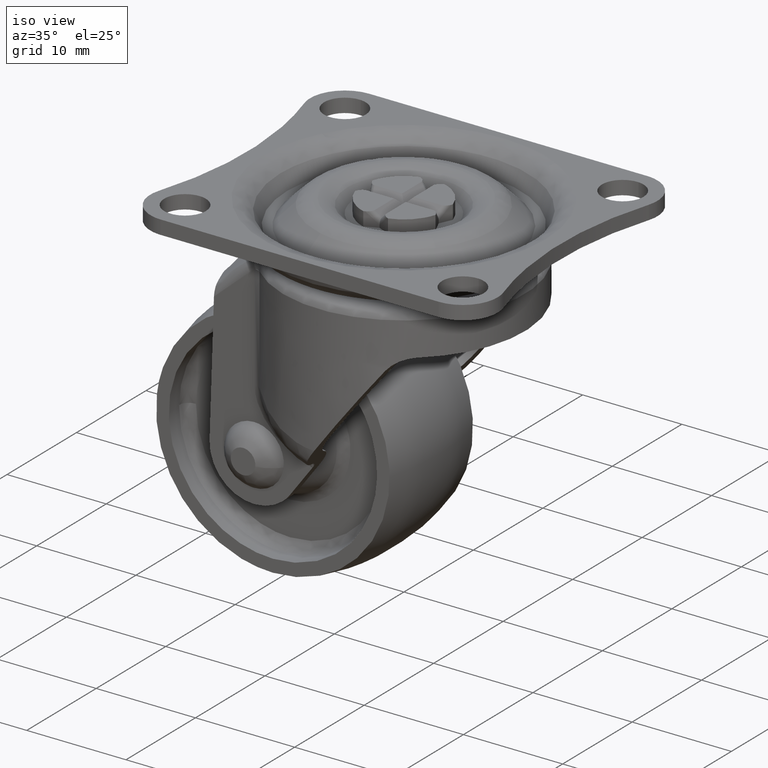
[diagram: clean part render]
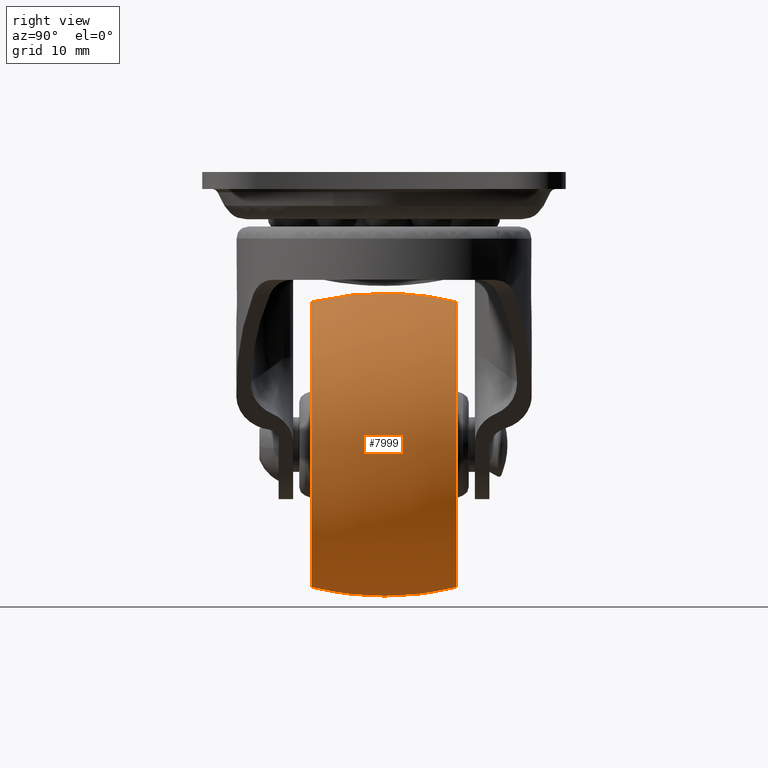
[diagram: tour spotlight — one face highlighted and labeled with its STEP entity id]
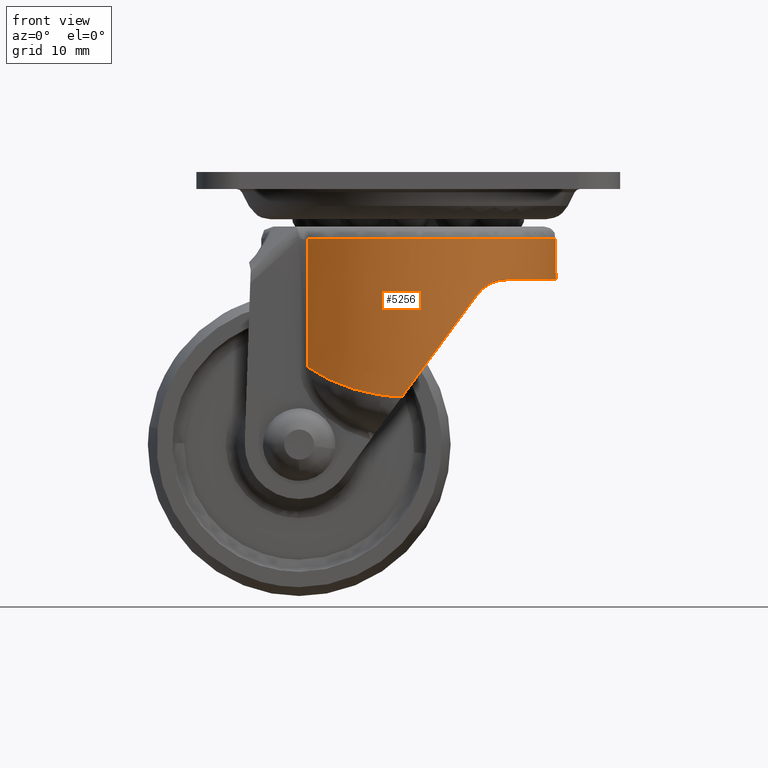
[diagram: tour spotlight — one face highlighted and labeled with its STEP entity id]
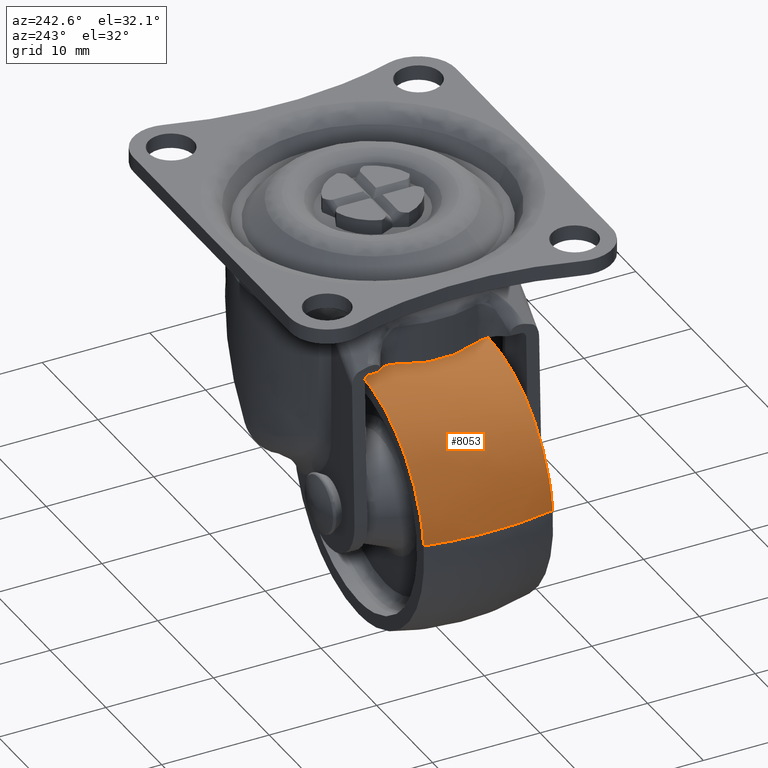
[diagram: tour spotlight — one face highlighted and labeled with its STEP entity id]
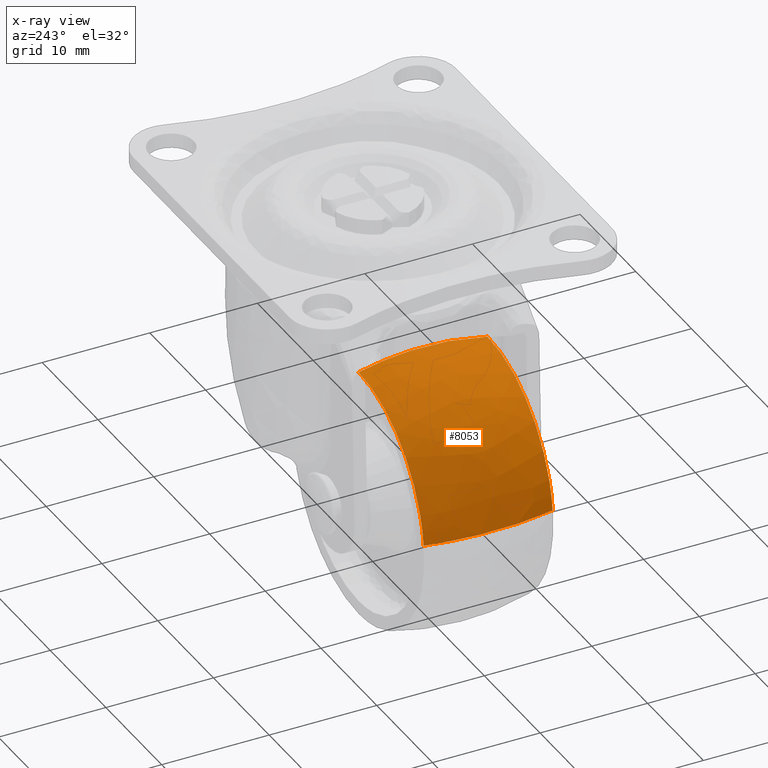
[diagram: x-ray of the same camera — body ghosted, this tour face saturated]
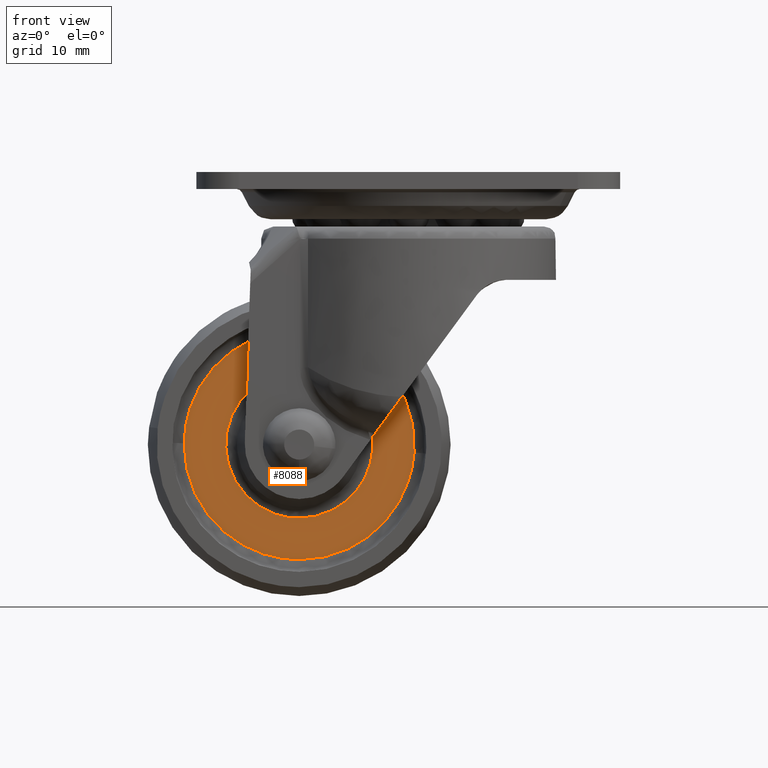
[diagram: tour spotlight — one face highlighted and labeled with its STEP entity id]
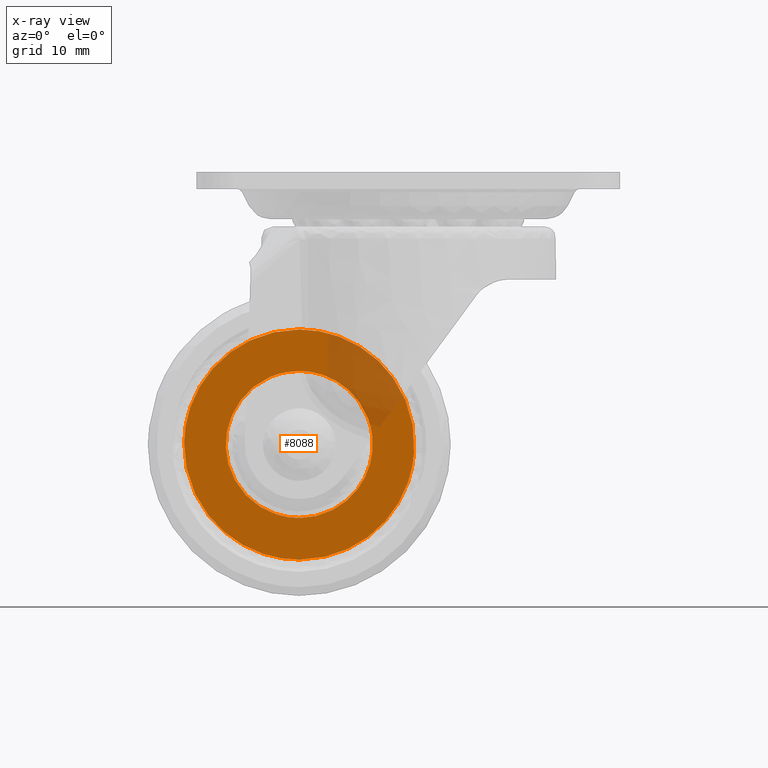
[diagram: x-ray of the same camera — body ghosted, this tour face saturated]
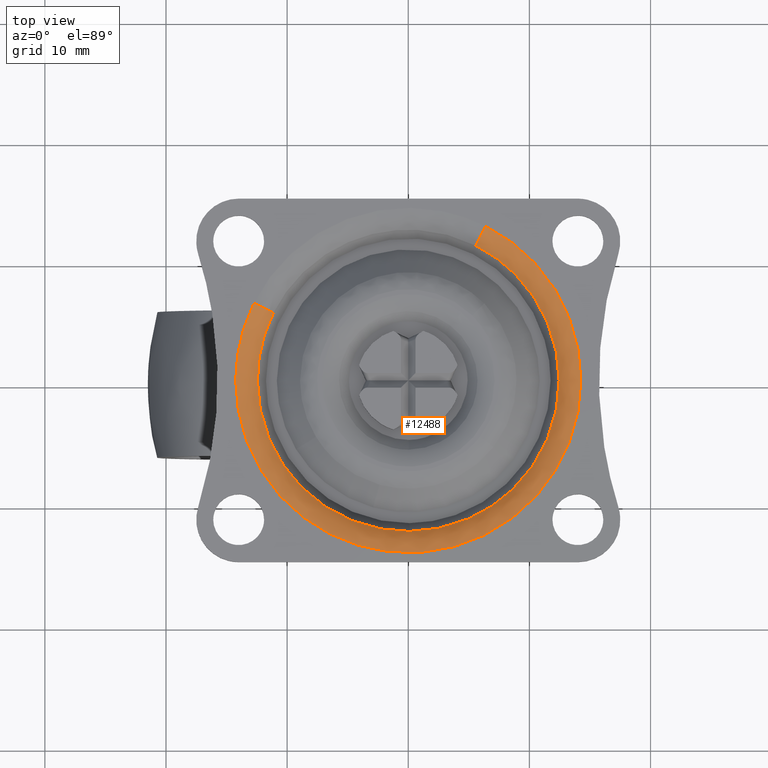
[diagram: tour spotlight — one face highlighted and labeled with its STEP entity id]
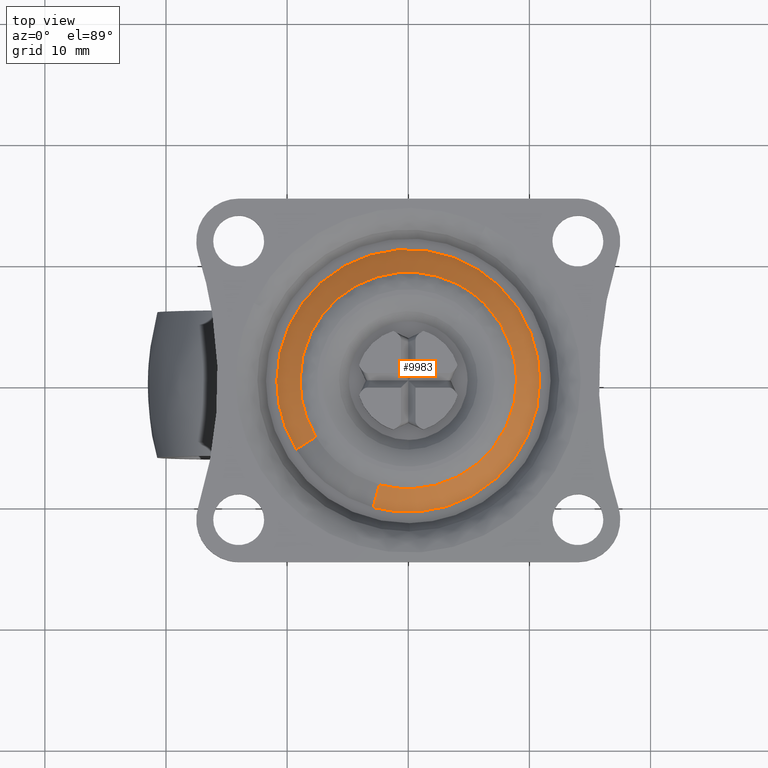
[diagram: tour spotlight — one face highlighted and labeled with its STEP entity id]
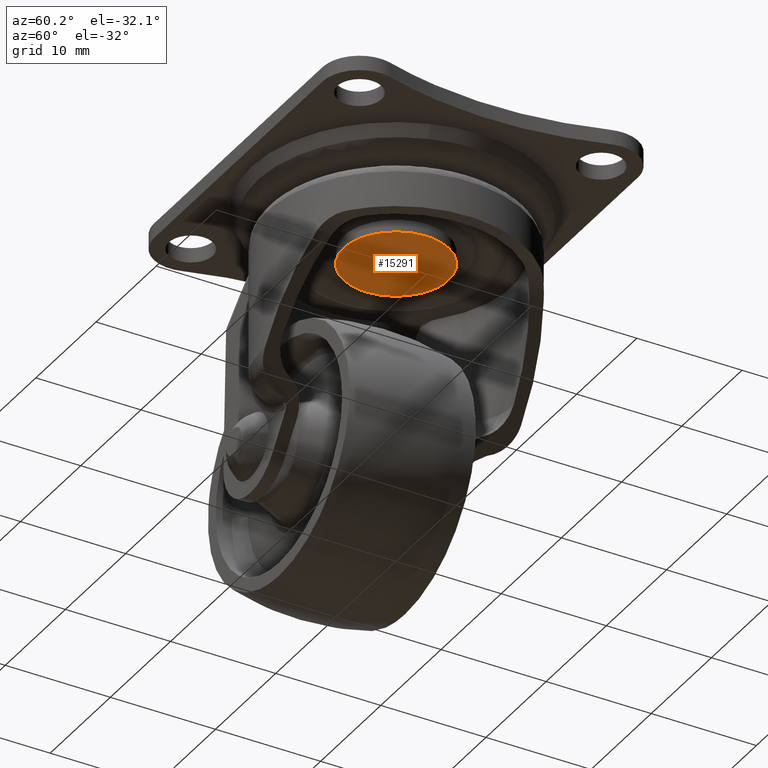
[diagram: tour spotlight — one face highlighted and labeled with its STEP entity id]
A machine part: a face-by-face anatomy tour. The part has 230 B-rep faces; the first image is the clean iso view, then the 7 largest visible faces are spotlighted one at a time (largest first), each with its STEP entity span.

Face 1 — right view, entity #7999. In plain terms, the highlighted face is a freeform B-spline surface patch.
Definition (entity closure, byte-faithful):
#7842=CARTESIAN_POINT('',(-11.535398375929391,-6.599986270458298,1.340893980304507));
#7843=CARTESIAN_POINT('',(-12.416395520413726,-3.359587462672933,1.443302560329757));
#7844=CARTESIAN_POINT('',(-12.416395520413728,0.0,1.443302560329758));
#7845=CARTESIAN_POINT('',(-12.416395520413730,3.359586662992828,1.443302560329758));
#7846=CARTESIAN_POINT('',(-11.535398787895863,6.599984755202729,1.340894028192179));
#7847=CARTESIAN_POINT('',(-11.613070754878370,-6.599986270458297,0.672696608145998));
#7848=CARTESIAN_POINT('',(-12.500000000000179,-3.359587462672933,0.724072709045780));
#7849=CARTESIAN_POINT('',(-12.500000000000178,0.0,0.724072709045780));
#7850=CARTESIAN_POINT('',(-12.500000000000178,3.359586662992829,0.724072709045780));
#7851=CARTESIAN_POINT('',(-11.613071169618777,6.599984755202730,0.672696632170175));
#7852=CARTESIAN_POINT('',(-11.613070754878381,-6.599986270458297,0.0));
#7853=CARTESIAN_POINT('',(-12.500000000000187,-3.359587462672932,0.0));
#7854=CARTESIAN_POINT('',(-12.500000000000179,0.0,0.0));
#7855=CARTESIAN_POINT('',(-12.500000000000183,3.359586662992828,0.0));
#7856=CARTESIAN_POINT('',(-11.613071169618777,6.599984755202728,0.0));
#7857=CARTESIAN_POINT('',(-11.613070754878374,-6.599986270458297,-11.613070754878374));
#7858=CARTESIAN_POINT('',(-12.500000000000181,-3.359587462672933,-12.500000000000181));
#7859=CARTESIAN_POINT('',(-12.500000000000181,0.0,-12.500000000000181));
#7860=CARTESIAN_POINT('',(-12.500000000000181,3.359586662992829,-12.500000000000181));
#7861=CARTESIAN_POINT('',(-11.613071169618779,6.599984755202731,-11.613071169618779));
#7862=CARTESIAN_POINT('',(0.0,-6.599986270458297,-11.613070754878381));
#7863=CARTESIAN_POINT('',(0.0,-3.359587462672932,-12.500000000000187));
#7864=CARTESIAN_POINT('',(0.0,0.0,-12.500000000000179));
#7865=CARTESIAN_POINT('',(0.0,3.359586662992828,-12.500000000000183));
#7866=CARTESIAN_POINT('',(0.0,6.599984755202728,-11.613071169618777));
#7867=CARTESIAN_POINT('',(11.613070754878374,-6.599986270458297,-11.613070754878374));
#7868=CARTESIAN_POINT('',(12.500000000000181,-3.359587462672933,-12.500000000000181));
#7869=CARTESIAN_POINT('',(12.500000000000181,0.0,-12.500000000000181));
#7870=CARTESIAN_POINT('',(12.500000000000181,3.359586662992829,-12.500000000000181));
#7871=CARTESIAN_POINT('',(11.613071169618779,6.599984755202731,-11.613071169618779));
#7872=CARTESIAN_POINT('',(11.613070754878381,-6.599986270458297,0.0));
#7873=CARTESIAN_POINT('',(12.500000000000187,-3.359587462672932,0.0));
#7874=CARTESIAN_POINT('',(12.500000000000179,0.0,0.0));
#7875=CARTESIAN_POINT('',(12.500000000000183,3.359586662992828,0.0));
#7876=CARTESIAN_POINT('',(11.613071169618777,6.599984755202728,0.0));
#7877=CARTESIAN_POINT('',(11.613070754878374,-6.599986270458297,11.613070754878374));
#7878=CARTESIAN_POINT('',(12.500000000000181,-3.359587462672933,12.500000000000181));
#7879=CARTESIAN_POINT('',(12.500000000000181,0.0,12.500000000000181));
#7880=CARTESIAN_POINT('',(12.500000000000181,3.359586662992829,12.500000000000181));
#7881=CARTESIAN_POINT('',(11.613071169618779,6.599984755202731,11.613071169618779));
#7882=CARTESIAN_POINT('',(0.0,-6.599986270458297,11.613070754878381));
#7883=CARTESIAN_POINT('',(0.0,-3.359587462672932,12.500000000000187));
#7884=CARTESIAN_POINT('',(0.0,0.0,12.500000000000179));
#7885=CARTESIAN_POINT('',(0.0,3.359586662992828,12.500000000000183));
#7886=CARTESIAN_POINT('',(0.0,6.599984755202728,11.613071169618777));
#7894=(BOUNDED_SURFACE()B_SPLINE_SURFACE(2,2,((#7842,#7847,#7852,#7857,#7862,#7867,#7872,#7877,#7882),(#7843,#7848,#7853,#7858,#7863,#7868,#7873,#7878,#7883),(#7844,#7849,#7854,#7859,#7864,#7869,#7874,#7879,#7884),(#7845,#7850,#7855,#7860,#7865,#7870,#7875,#7880,#7885),(#7846,#7851,#7856,#7861,#7866,#7871,#7876,#7881,#7886)),.UNSPECIFIED.,.F.,.F.,.U.)B_SPLINE_SURFACE_WITH_KNOTS((3,2,3),(3,2,2,2,3),(0.0,6.837638245432234,13.675274919874640),(0.0,1.656853903845673,22.367532022500729,43.078210141155779,63.788888259810832),.UNSPECIFIED.)GEOMETRIC_REPRESENTATION_ITEM()RATIONAL_B_SPLINE_SURFACE(((0.907626144349855,0.926295324906351,0.948520538971409,0.670705305201402,0.948520538971409,0.670705305201402,0.948520538971409,0.670705305201402,0.948520538971409),(0.923628169546622,0.942626499609804,0.965243558310109,0.682530265577711,0.965243558310109,0.682530265577711,0.965243558310109,0.682530265577711,0.965243558310109),(0.956886126402807,0.976568547383107,1.0,0.707106781186548,1.0,0.707106781186548,1.0,0.707106781186548,1.0),(0.923628177187844,0.942626507408200,0.965243566295617,0.682530271224318,0.965243566295617,0.682530271224318,0.965243566295617,0.682530271224318,0.965243566295617),(0.907626151702985,0.926295332410729,0.948520546655845,0.670705310635119,0.948520546655845,0.670705310635119,0.948520546655845,0.670705310635119,0.948520546655845)))REPRESENTATION_ITEM('')SURFACE());
#7895=CARTESIAN_POINT('',(-11.690605269687421,-5.999999584861209,1.358931023352750));
#7896=VERTEX_POINT('',#7895);
#7897=CARTESIAN_POINT('',(0.0,-5.999999999999920,-11.769322000000100));
#7898=VERTEX_POINT('',#7897);
#7899=CARTESIAN_POINT('',(-11.690605269687415,-5.999999584861209,1.358931023352750));
#7900=CARTESIAN_POINT('',(-11.769322000000102,-5.999999999999921,0.681745363826555));
#7901=CARTESIAN_POINT('',(-11.769322000000100,-5.999999999999920,-8.061993E-016));
#7902=CARTESIAN_POINT('',(-11.769322000000102,-5.999999999999919,-11.769322000000102));
#7903=CARTESIAN_POINT('',(0.0,-5.999999999999920,-11.769322000000100));
#7911=(BOUNDED_CURVE()B_SPLINE_CURVE(2,(#7899,#7900,#7901,#7902,#7903),.UNSPECIFIED.,.F.,.U.)B_SPLINE_CURVE_WITH_KNOTS((3,2,3),(0.730000067925092,0.750000000000000,1.0),.UNSPECIFIED.)CURVE()GEOMETRIC_REPRESENTATION_ITEM()RATIONAL_B_SPLINE_CURVE((0.956886251883750,0.976568622074119,1.0,0.707106781186547,1.0))REPRESENTATION_ITEM(''));
#7912=EDGE_CURVE('',#7896,#7898,#7911,.T.);
#7913=ORIENTED_EDGE('',*,*,#7912,.F.);
#7914=CARTESIAN_POINT('',(-11.690605895149821,5.999997061366576,1.358931045811805));
#7915=VERTEX_POINT('',#7914);
#7916=CARTESIAN_POINT('',(-11.690605269687419,-5.999999584861209,1.358931023352751));
#7917=CARTESIAN_POINT('',(-12.416395938765959,-3.044490620767879,1.443298149130167));
#7918=CARTESIAN_POINT('',(-12.416395940227970,-2.767099E-014,1.443298136552381));
#7919=CARTESIAN_POINT('',(-12.416395941689972,3.044489301757644,1.443298123974602));
#7920=CARTESIAN_POINT('',(-11.690605895149819,5.999997061366575,1.358931045811805));
#7928=(BOUNDED_CURVE()B_SPLINE_CURVE(2,(#7916,#7917,#7918,#7919,#7920),.UNSPECIFIED.,.F.,.U.)B_SPLINE_CURVE_WITH_KNOTS((3,2,3),(0.382068566101221,0.500000000000000,0.617931384420107),.UNSPECIFIED.)CURVE()GEOMETRIC_REPRESENTATION_ITEM()RATIONAL_B_SPLINE_CURVE((0.910675307715531,0.926648868535001,0.956886118190660,0.926648881221177,0.910675321119095))REPRESENTATION_ITEM(''));
#7929=EDGE_CURVE('',#7896,#7915,#7928,.T.);
#7930=ORIENTED_EDGE('',*,*,#7929,.T.);
#7931=CARTESIAN_POINT('',(0.0,5.999999999999920,-11.769322000000100));
#7932=VERTEX_POINT('',#7931);
#7933=CARTESIAN_POINT('',(-11.690605895149821,5.999997061366576,1.358931045811805));
#7934=CARTESIAN_POINT('',(-11.769322799329990,5.999997137157323,0.681745431703237));
#7935=CARTESIAN_POINT('',(-11.769322775566261,5.999997222268411,0.000000090152805));
#7936=CARTESIAN_POINT('',(-11.769322365320603,5.999998691585083,-11.769321957534778));
#7937=CARTESIAN_POINT('',(0.0,5.999999999999920,-11.769322000000100));
#7945=(BOUNDED_CURVE()B_SPLINE_CURVE(2,(#7933,#7934,#7935,#7936,#7937),.UNSPECIFIED.,.F.,.U.)B_SPLINE_CURVE_WITH_KNOTS((3,2,3),(0.730000068642418,0.750000000000000,1.0),.UNSPECIFIED.)CURVE()GEOMETRIC_REPRESENTATION_ITEM()RATIONAL_B_SPLINE_CURVE((0.956886253295623,0.976568622914518,1.0,0.707106781186547,1.0))REPRESENTATION_ITEM(''));
#7946=EDGE_CURVE('',#7915,#7932,#7945,.T.);
#7947=ORIENTED_EDGE('',*,*,#7946,.T.);
#7948=CARTESIAN_POINT('',(0.0,5.999993945102572,11.769323596436340));
#7949=VERTEX_POINT('',#7948);
#7950=CARTESIAN_POINT('',(0.0,5.999999999999920,-11.769322000000100));
#7951=CARTESIAN_POINT('',(11.769322000000102,5.999999999999919,-11.769322000000102));
#7952=CARTESIAN_POINT('',(11.769322000000100,5.999996972551246,0.000000798218117));
#7953=CARTESIAN_POINT('',(11.769322000000102,5.999993945102572,11.769323596436337));
#7954=CARTESIAN_POINT('',(0.0,5.999993945102572,11.769323596436340));
#7962=(BOUNDED_CURVE()B_SPLINE_CURVE(2,(#7950,#7951,#7952,#7953,#7954),.UNSPECIFIED.,.F.,.U.)B_SPLINE_CURVE_WITH_KNOTS((3,2,3),(0.0,0.250000000000000,0.500000000000000),.UNSPECIFIED.)CURVE()GEOMETRIC_REPRESENTATION_ITEM()RATIONAL_B_SPLINE_CURVE((1.0,0.707106781186547,1.0,0.707106781186547,1.0))REPRESENTATION_ITEM(''));
#7963=EDGE_CURVE('',#7932,#7949,#7962,.T.);
#7964=ORIENTED_EDGE('',*,*,#7963,.T.);
#7965=CARTESIAN_POINT('',(0.0,-5.999996491529000,11.769322966895359));
#7966=VERTEX_POINT('',#7965);
#7967=CARTESIAN_POINT('',(0.0,-5.999996491529000,11.769322966895363));
#7968=CARTESIAN_POINT('',(0.0,-3.044489015672502,12.500000000000181));
#7969=CARTESIAN_POINT('',(0.0,0.0,12.500000000000179));
#7970=CARTESIAN_POINT('',(0.0,3.044487684676151,12.500000000000179));
#7971=CARTESIAN_POINT('',(0.0,5.999993945102572,11.769323596436335));
#7979=(BOUNDED_CURVE()B_SPLINE_CURVE(2,(#7967,#7968,#7969,#7970,#7971),.UNSPECIFIED.,.F.,.U.)B_SPLINE_CURVE_WITH_KNOTS((3,2,3),(0.382068626752823,0.500000000000000,0.617931323318878),.UNSPECIFIED.)CURVE()GEOMETRIC_REPRESENTATION_ITEM()RATIONAL_B_SPLINE_CURVE((0.951707112093712,0.968400383776125,1.0,0.968400397154372,0.951707126228488))REPRESENTATION_ITEM(''));
#7980=EDGE_CURVE('',#7966,#7949,#7979,.T.);
#7981=ORIENTED_EDGE('',*,*,#7980,.F.);
#7982=CARTESIAN_POINT('',(0.0,-5.999999999999920,-11.769322000000100));
#7983=CARTESIAN_POINT('',(11.769322000000102,-5.999999999999919,-11.769322000000102));
#7984=CARTESIAN_POINT('',(11.769322000000100,-5.999998245764460,0.000000483447630));
#7985=CARTESIAN_POINT('',(11.769322000000102,-5.999996491529000,11.769322966895363));
#7986=CARTESIAN_POINT('',(0.0,-5.999996491529000,11.769322966895359));
#7994=(BOUNDED_CURVE()B_SPLINE_CURVE(2,(#7982,#7983,#7984,#7985,#7986),.UNSPECIFIED.,.F.,.U.)B_SPLINE_CURVE_WITH_KNOTS((3,2,3),(0.0,0.250000000000000,0.500000000000000),.UNSPECIFIED.)CURVE()GEOMETRIC_REPRESENTATION_ITEM()RATIONAL_B_SPLINE_CURVE((1.0,0.707106781186547,1.0,0.707106781186547,1.0))REPRESENTATION_ITEM(''));
#7995=EDGE_CURVE('',#7898,#7966,#7994,.T.);
#7996=ORIENTED_EDGE('',*,*,#7995,.F.);
#7997=EDGE_LOOP('',(#7913,#7930,#7947,#7964,#7981,#7996));
#7998=FACE_OUTER_BOUND('',#7997,.T.);
#7999=ADVANCED_FACE('',(#7998),#7894,.T.);

Face 2 — front view, entity #5256. In plain terms, the highlighted face is a freeform B-spline surface patch.
Definition (entity closure, byte-faithful):
#2073=CARTESIAN_POINT('',(-8.274420930701369,-8.965152439393940,-5.499997999999900));
#2074=VERTEX_POINT('',#2073);
#2231=CARTESIAN_POINT('',(-8.020568064364479,9.192958605633802,-5.499997999999900));
#2232=VERTEX_POINT('',#2231);
#2266=CARTESIAN_POINT('',(-8.020568064364479,9.192958605633802,-5.499997999999900));
#2267=CARTESIAN_POINT('',(0.847116722118860,16.929735464362569,-5.499998000000000));
#2268=CARTESIAN_POINT('',(8.898188189690552,8.346391252562485,-5.499998000000000));
#2269=CARTESIAN_POINT('',(16.949259657262253,-0.236952959237598,-5.499998000000000));
#2270=CARTESIAN_POINT('',(8.661388898322009,-8.591876532633849,-5.499998000000000));
#2271=CARTESIAN_POINT('',(0.373518139381768,-16.946800106030096,-5.499998000000000));
#2272=CARTESIAN_POINT('',(-8.274420930701369,-8.965152439393940,-5.499997999999900));
#2280=(BOUNDED_CURVE()B_SPLINE_CURVE(2,(#2266,#2267,#2268,#2269,#2270,#2271,#2272),.UNSPECIFIED.,.F.,.U.)B_SPLINE_CURVE_WITH_KNOTS((3,2,2,3),(0.0,0.333333333333333,0.666666666666667,1.0),.UNSPECIFIED.)CURVE()GEOMETRIC_REPRESENTATION_ITEM()RATIONAL_B_SPLINE_CURVE((1.0,0.719725121434746,1.0,0.719725121434746,1.0,0.719725121434746,1.0))REPRESENTATION_ITEM(''));
#2281=EDGE_CURVE('',#2232,#2074,#2280,.T.);
#2968=CARTESIAN_POINT('',(-8.274422194066441,-8.965153312001618,-16.126447511410749));
#2969=VERTEX_POINT('',#2968);
#3074=CARTESIAN_POINT('',(-8.274420930701369,-8.965152439393940,-5.499997999999900));
#3075=CARTESIAN_POINT('',(-8.274422194066441,-8.965153312001618,-16.126447511410749));
#3076=QUASI_UNIFORM_CURVE('',1,(#3074,#3075),.UNSPECIFIED.,.F.,.U.);
#3077=EDGE_CURVE('',#2074,#2969,#3076,.T.);
#3679=CARTESIAN_POINT('',(-8.020570273181040,9.192958605633731,-16.298235109887351));
#3680=VERTEX_POINT('',#3679);
#3681=CARTESIAN_POINT('',(-8.020570273181040,9.192958605633731,-16.298235109887351));
#3682=CARTESIAN_POINT('',(-8.020568064364479,9.192958605633802,-5.499997999999900));
#3683=QUASI_UNIFORM_CURVE('',1,(#3681,#3682),.UNSPECIFIED.,.F.,.U.);
#3684=EDGE_CURVE('',#3680,#2232,#3683,.T.);
#3961=CARTESIAN_POINT('',(-0.517084725551412,-12.189037016376700,-18.557573115228848));
#3962=VERTEX_POINT('',#3961);
#3963=CARTESIAN_POINT('',(-8.274422194066430,-8.965153312001627,-16.126447511410738));
#3964=CARTESIAN_POINT('',(-4.986859857217046,-11.999420608508816,-18.414583505498189));
#3965=CARTESIAN_POINT('',(-0.517084725551412,-12.189037016376700,-18.557573115228848));
#3973=(BOUNDED_CURVE()B_SPLINE_CURVE(2,(#3963,#3964,#3965),.UNSPECIFIED.,.F.,.U.)CURVE()GEOMETRIC_REPRESENTATION_ITEM()QUASI_UNIFORM_CURVE()RATIONAL_B_SPLINE_CURVE((1.0,0.938864825450250,1.0))REPRESENTATION_ITEM(''));
#3974=EDGE_CURVE('',#2969,#3962,#3973,.T.);
#4245=CARTESIAN_POINT('',(-0.517084725551413,12.189037016376700,-18.557573115228848));
#4246=VERTEX_POINT('',#4245);
#4275=CARTESIAN_POINT('',(-0.517084725551413,12.189037016376700,-18.557573115228848));
#4276=CARTESIAN_POINT('',(-4.794527569620289,12.007579686011054,-18.420736252467083));
#4277=CARTESIAN_POINT('',(-8.020570273181040,9.192958605633731,-16.298235109887351));
#4285=(BOUNDED_CURVE()B_SPLINE_CURVE(2,(#4275,#4276,#4277),.UNSPECIFIED.,.F.,.U.)CURVE()GEOMETRIC_REPRESENTATION_ITEM()QUASI_UNIFORM_CURVE()RATIONAL_B_SPLINE_CURVE((1.0,0.943585769441099,1.0))REPRESENTATION_ITEM(''));
#4286=EDGE_CURVE('',#4246,#3680,#4285,.T.);
#4785=CARTESIAN_POINT('',(5.682793000000000,10.795640959162700,-10.123179000000000));
#4786=VERTEX_POINT('',#4785);
#4787=CARTESIAN_POINT('',(-0.517084725551434,12.189037016376700,-18.557573115228841));
#4788=CARTESIAN_POINT('',(2.770781181213867,12.328515240765181,-14.084717668194033));
#4789=CARTESIAN_POINT('',(5.682793000000000,10.795640959162700,-10.123179000000000));
#4797=(BOUNDED_CURVE()B_SPLINE_CURVE(2,(#4787,#4788,#4789),.UNSPECIFIED.,.F.,.U.)CURVE()GEOMETRIC_REPRESENTATION_ITEM()QUASI_UNIFORM_CURVE()RATIONAL_B_SPLINE_CURVE((1.0,0.965492324851358,1.0))REPRESENTATION_ITEM(''));
#4798=EDGE_CURVE('',#4246,#4786,#4797,.T.);
#4852=CARTESIAN_POINT('',(5.682793000000000,-10.795640959162700,-10.123179000000000));
#4853=VERTEX_POINT('',#4852);
#4859=CARTESIAN_POINT('',(5.682793000000000,-10.795640959162700,-10.123179000000000));
#4860=CARTESIAN_POINT('',(2.770781181213922,-12.328515240765180,-14.084717668193957));
#4861=CARTESIAN_POINT('',(-0.517084725551431,-12.189037016376700,-18.557573115228831));
#4869=(BOUNDED_CURVE()B_SPLINE_CURVE(2,(#4859,#4860,#4861),.UNSPECIFIED.,.F.,.U.)CURVE()GEOMETRIC_REPRESENTATION_ITEM()QUASI_UNIFORM_CURVE()RATIONAL_B_SPLINE_CURVE((1.0,0.965492324851359,1.0))REPRESENTATION_ITEM(''));
#4870=EDGE_CURVE('',#4853,#3962,#4869,.T.);
#4984=CARTESIAN_POINT('',(8.099991054950829,9.123055678319441,-8.900000000000000));
#4985=VERTEX_POINT('',#4984);
#4986=CARTESIAN_POINT('',(8.099991054950829,-9.123055678319441,-8.900000000000000));
#4987=VERTEX_POINT('',#4986);
#4988=CARTESIAN_POINT('',(8.099991054950827,9.123055678319442,-8.900000000000000));
#4989=CARTESIAN_POINT('',(12.200000000000001,5.482824055154087,-8.900000000000000));
#4990=CARTESIAN_POINT('',(12.199999999999999,0.0,-8.900000000000000));
#4991=CARTESIAN_POINT('',(12.200000000000001,-5.482824055154083,-8.900000000000000));
#4992=CARTESIAN_POINT('',(8.099991054950829,-9.123055678319439,-8.900000000000000));
#5000=(BOUNDED_CURVE()B_SPLINE_CURVE(2,(#4988,#4989,#4990,#4991,#4992),.UNSPECIFIED.,.F.,.U.)B_SPLINE_CURVE_WITH_KNOTS((3,2,3),(0.0,0.500000000000000,1.0),.UNSPECIFIED.)CURVE()GEOMETRIC_REPRESENTATION_ITEM()RATIONAL_B_SPLINE_CURVE((1.0,0.912122166441742,1.0,0.912122166441742,1.0))REPRESENTATION_ITEM(''));
#5001=EDGE_CURVE('',#4985,#4987,#5000,.T.);
#5074=CARTESIAN_POINT('',(5.682792999999983,-10.795640959162689,-10.123178999999990));
#5075=CARTESIAN_POINT('',(5.721513357682505,-10.775258679089831,-10.070502855223960));
#5076=CARTESIAN_POINT('',(5.761794633562077,-10.753789138568489,-10.019308178645829));
#5077=CARTESIAN_POINT('',(5.845393897185388,-10.708577329546920,-9.919858383083929));
#5078=CARTESIAN_POINT('',(5.888807496356384,-10.684781823035230,-9.871504558963659));
#5079=CARTESIAN_POINT('',(6.022886701801635,-10.610150852711261,-9.731522420224321));
#5080=CARTESIAN_POINT('',(6.116256083101437,-10.556706388646280,-9.646059689957401));
#5081=CARTESIAN_POINT('',(6.309755828806237,-10.442203772719919,-9.489498607386818));
#5082=CARTESIAN_POINT('',(6.409891620162401,-10.381144225719520,-9.418408201999229));
#5083=CARTESIAN_POINT('',(6.564538919629002,-10.283508412843901,-9.322005485219050));
#5084=CARTESIAN_POINT('',(6.616984881991098,-10.249851796364929,-9.291502680556739));
#5085=CARTESIAN_POINT('',(6.722246622553203,-10.181127202894389,-9.234406503828954));
#5086=CARTESIAN_POINT('',(6.775105158235927,-10.146036017283301,-9.207771918806991));
#5087=CARTESIAN_POINT('',(6.934231643599612,-10.038566560498669,-9.133284758048326));
#5088=CARTESIAN_POINT('',(7.041046048289895,-9.963994659949357,-9.090833237559806));
#5089=CARTESIAN_POINT('',(7.201935125507025,-9.847665216049826,-9.037014369120305));
#5090=CARTESIAN_POINT('',(7.255677282641974,-9.808142875658385,-9.020722040647005));
#5091=CARTESIAN_POINT('',(7.363327507727551,-9.727585903661710,-8.991317206937321));
#5092=CARTESIAN_POINT('',(7.417334349825570,-9.686474520250272,-8.978184218655292));
#5093=CARTESIAN_POINT('',(7.686514809529587,-9.477958108149847,-8.920479795796394));
#5094=CARTESIAN_POINT('',(7.896146930578931,-9.304040607298939,-8.899999999991938));
#5095=CARTESIAN_POINT('',(8.099991054950829,-9.123055678319441,-8.900000000000000));
#5096=B_SPLINE_CURVE_WITH_KNOTS('',3,(#5074,#5075,#5076,#5077,#5078,#5079,#5080,#5081,#5082,#5083,#5084,#5085,#5086,#5087,#5088,#5089,#5090,#5091,#5092,#5093,#5094,#5095),.UNSPECIFIED.,.F.,.U.,(4,2,2,2,2,2,2,2,2,2,4),(0.0,0.062500000000000,0.125000000000000,0.250000000000000,0.375000000000000,0.437500000000001,0.500000000000001,0.625000000000001,0.687500000000001,0.750000000000001,1.0),.UNSPECIFIED.);
#5097=EDGE_CURVE('',#4853,#4987,#5096,.T.);
#5143=CARTESIAN_POINT('',(8.099991054950829,9.123055678319441,-8.900000000000000));
#5144=CARTESIAN_POINT('',(7.997939162195134,9.213663414105421,-8.899999999991927));
#5145=CARTESIAN_POINT('',(7.894256032901840,9.302658358946188,-8.905189555537682));
#5146=CARTESIAN_POINT('',(7.736248620026411,9.433723549225354,-8.921662451148851));
#5147=CARTESIAN_POINT('',(7.683165536493409,9.477007346365282,-8.928604778762677));
#5148=CARTESIAN_POINT('',(7.576163364737734,9.562763699633461,-8.945590282013535));
#5149=CARTESIAN_POINT('',(7.522420632576209,9.605091708123595,-8.955612436219004));
#5150=CARTESIAN_POINT('',(7.254311540646647,9.812672744425875,-9.013313978583067));
#5151=CARTESIAN_POINT('',(7.040051470381942,9.967104445672849,-9.083733151183974));
#5152=CARTESIAN_POINT('',(6.774943810339374,10.146143594996101,-9.207851782780415));
#5153=CARTESIAN_POINT('',(6.722063147433603,10.181248824847749,-9.234499582511905));
#5154=CARTESIAN_POINT('',(6.616669046303938,10.250056161955021,-9.291680469123541));
#5155=CARTESIAN_POINT('',(6.564205762177072,10.283720958128679,-9.322204281826160));
#5156=CARTESIAN_POINT('',(6.409606892747815,10.381319550608890,-9.418603543678440));
#5157=CARTESIAN_POINT('',(6.309556754389494,10.442322430738830,-9.489654952606223));
#5158=CARTESIAN_POINT('',(6.116317218084399,10.556669355063550,-9.646014955221276));
#5159=CARTESIAN_POINT('',(6.023122581301925,10.610014688252910,-9.731316055526838));
#5160=CARTESIAN_POINT('',(5.889354472413040,10.684479782696560,-9.870913700502907));
#5161=CARTESIAN_POINT('',(5.845667086167633,10.708428839814401,-9.919541132707852));
#5162=CARTESIAN_POINT('',(5.761815916071581,10.753778370832119,-10.019275152462161));
#5163=CARTESIAN_POINT('',(5.721491022425258,10.775270436302209,-10.070533240667549));
#5164=CARTESIAN_POINT('',(5.682792999999984,10.795640959162700,-10.123178999999990));
#5165=B_SPLINE_CURVE_WITH_KNOTS('',3,(#5143,#5144,#5145,#5146,#5147,#5148,#5149,#5150,#5151,#5152,#5153,#5154,#5155,#5156,#5157,#5158,#5159,#5160,#5161,#5162,#5163,#5164),.UNSPECIFIED.,.F.,.U.,(4,2,2,2,2,2,2,2,2,2,4),(0.0,0.125000000000002,0.187500000000003,0.250000000000004,0.500000000000005,0.562500000000005,0.625000000000005,0.750000000000003,0.875000000000001,0.937500000000001,1.0),.UNSPECIFIED.);
#5166=EDGE_CURVE('',#4985,#4786,#5165,.T.);
#5222=CARTESIAN_POINT('',(-8.100486589872739,9.122615688896021,-18.884012493109569));
#5223=CARTESIAN_POINT('',(-8.100486589872739,9.122615688896021,-5.165397637672159));
#5224=CARTESIAN_POINT('',(0.864282880061629,17.082941690669305,-18.884012493109569));
#5225=CARTESIAN_POINT('',(0.864282880061629,17.082941690669305,-5.165397637672159));
#5226=CARTESIAN_POINT('',(8.979853286033992,8.258464443303273,-18.884012493109569));
#5227=CARTESIAN_POINT('',(8.979853286033992,8.258464443303273,-5.165397637672159));
#5228=CARTESIAN_POINT('',(17.095423692006349,-0.566012804062760,-18.884012493109569));
#5229=CARTESIAN_POINT('',(17.095423692006349,-0.566012804062760,-5.165397637672159));
#5230=CARTESIAN_POINT('',(8.413926688462833,-8.834355532871244,-18.884012493109569));
#5231=CARTESIAN_POINT('',(8.413926688462833,-8.834355532871244,-5.165397637672159));
#5232=CARTESIAN_POINT('',(-0.267570315080687,-17.102698261679727,-18.884012493109569));
#5233=CARTESIAN_POINT('',(-0.267570315080687,-17.102698261679727,-5.165397637672159));
#5234=CARTESIAN_POINT('',(-8.686166749432861,-8.566825970045551,-18.884012493109569));
#5235=CARTESIAN_POINT('',(-8.686166749432861,-8.566825970045551,-5.165397637672159));
#5243=(BOUNDED_SURFACE()B_SPLINE_SURFACE(1,2,((#5222,#5224,#5226,#5228,#5230,#5232,#5234),(#5223,#5225,#5227,#5229,#5231,#5233,#5235)),.UNSPECIFIED.,.F.,.F.,.U.)B_SPLINE_SURFACE_WITH_KNOTS((2,2),(3,2,2,3),(0.0,13.718614855437410),(0.0,19.964607109672219,39.929214219344452,59.893821329016667),.UNSPECIFIED.)GEOMETRIC_REPRESENTATION_ITEM()RATIONAL_B_SPLINE_SURFACE(((1.0,0.713250449154182,1.0,0.713250449154182,1.0,0.713250449154182,1.0),(1.0,0.713250449154182,1.0,0.713250449154182,1.0,0.713250449154182,1.0)))REPRESENTATION_ITEM('')SURFACE());
#5244=ORIENTED_EDGE('',*,*,#3684,.T.);
#5245=ORIENTED_EDGE('',*,*,#2281,.T.);
#5246=ORIENTED_EDGE('',*,*,#3077,.T.);
#5247=ORIENTED_EDGE('',*,*,#3974,.T.);
#5248=ORIENTED_EDGE('',*,*,#4870,.F.);
#5249=ORIENTED_EDGE('',*,*,#5097,.T.);
#5250=ORIENTED_EDGE('',*,*,#5001,.F.);
#5251=ORIENTED_EDGE('',*,*,#5166,.T.);
#5252=ORIENTED_EDGE('',*,*,#4798,.F.);
#5253=ORIENTED_EDGE('',*,*,#4286,.T.);
#5254=EDGE_LOOP('',(#5244,#5245,#5246,#5247,#5248,#5249,#5250,#5251,#5252,#5253));
#5255=FACE_OUTER_BOUND('',#5254,.T.);
#5256=ADVANCED_FACE('',(#5255),#5243,.T.);

Face 3 — auxiliary view, entity #8053. An x-ray twin of the same camera follows (body ghosted, this face saturated) — the face is partly hidden behind the body. In plain terms, the highlighted face is a freeform B-spline surface patch.
Definition (entity closure, byte-faithful):
#7895=CARTESIAN_POINT('',(-11.690605269687421,-5.999999584861209,1.358931023352750));
#7896=VERTEX_POINT('',#7895);
#7914=CARTESIAN_POINT('',(-11.690605895149821,5.999997061366576,1.358931045811805));
#7915=VERTEX_POINT('',#7914);
#7916=CARTESIAN_POINT('',(-11.690605269687419,-5.999999584861209,1.358931023352751));
#7917=CARTESIAN_POINT('',(-12.416395938765959,-3.044490620767879,1.443298149130167));
#7918=CARTESIAN_POINT('',(-12.416395940227970,-2.767099E-014,1.443298136552381));
#7919=CARTESIAN_POINT('',(-12.416395941689972,3.044489301757644,1.443298123974602));
#7920=CARTESIAN_POINT('',(-11.690605895149819,5.999997061366575,1.358931045811805));
#7928=(BOUNDED_CURVE()B_SPLINE_CURVE(2,(#7916,#7917,#7918,#7919,#7920),.UNSPECIFIED.,.F.,.U.)B_SPLINE_CURVE_WITH_KNOTS((3,2,3),(0.382068566101221,0.500000000000000,0.617931384420107),.UNSPECIFIED.)CURVE()GEOMETRIC_REPRESENTATION_ITEM()RATIONAL_B_SPLINE_CURVE((0.910675307715531,0.926648868535001,0.956886118190660,0.926648881221177,0.910675321119095))REPRESENTATION_ITEM(''));
#7929=EDGE_CURVE('',#7896,#7915,#7928,.T.);
#7948=CARTESIAN_POINT('',(0.0,5.999993945102572,11.769323596436340));
#7949=VERTEX_POINT('',#7948);
#7965=CARTESIAN_POINT('',(0.0,-5.999996491529000,11.769322966895359));
#7966=VERTEX_POINT('',#7965);
#7967=CARTESIAN_POINT('',(0.0,-5.999996491529000,11.769322966895363));
#7968=CARTESIAN_POINT('',(0.0,-3.044489015672502,12.500000000000181));
#7969=CARTESIAN_POINT('',(0.0,0.0,12.500000000000179));
#7970=CARTESIAN_POINT('',(0.0,3.044487684676151,12.500000000000179));
#7971=CARTESIAN_POINT('',(0.0,5.999993945102572,11.769323596436335));
#7979=(BOUNDED_CURVE()B_SPLINE_CURVE(2,(#7967,#7968,#7969,#7970,#7971),.UNSPECIFIED.,.F.,.U.)B_SPLINE_CURVE_WITH_KNOTS((3,2,3),(0.382068626752823,0.500000000000000,0.617931323318878),.UNSPECIFIED.)CURVE()GEOMETRIC_REPRESENTATION_ITEM()RATIONAL_B_SPLINE_CURVE((0.951707112093712,0.968400383776125,1.0,0.968400397154372,0.951707126228488))REPRESENTATION_ITEM(''));
#7980=EDGE_CURVE('',#7966,#7949,#7979,.T.);
#8000=CARTESIAN_POINT('',(0.0,-6.599984528141688,11.613071231767618));
#8001=CARTESIAN_POINT('',(0.0,-3.359586543160769,12.500000000000178));
#8002=CARTESIAN_POINT('',(0.0,0.0,12.500000000000179));
#8003=CARTESIAN_POINT('',(0.0,3.359584943800608,12.500000000000183));
#8004=CARTESIAN_POINT('',(0.0,6.599981497630510,11.613072061248095));
#8005=CARTESIAN_POINT('',(-10.341343553001195,-6.599984528141687,11.613071231767620));
#8006=CARTESIAN_POINT('',(-11.131146260336958,-3.359586543160770,12.500000000000183));
#8007=CARTESIAN_POINT('',(-11.131146260336958,0.0,12.500000000000183));
#8008=CARTESIAN_POINT('',(-11.131146260336958,3.359584943800609,12.500000000000181));
#8009=CARTESIAN_POINT('',(-10.341344291646681,6.599981497630513,11.613072061248099));
#8010=CARTESIAN_POINT('',(-11.535398816554983,-6.599984528141688,1.340894319896460));
#8011=CARTESIAN_POINT('',(-12.416395484813700,-3.359586543160769,1.443302866588443));
#8012=CARTESIAN_POINT('',(-12.416395484813703,0.0,1.443302866588443));
#8013=CARTESIAN_POINT('',(-12.416395484813703,3.359584943800608,1.443302866588443));
#8014=CARTESIAN_POINT('',(-11.535399640487597,6.599981497630510,1.340894415671784));
#8022=(BOUNDED_SURFACE()B_SPLINE_SURFACE(2,2,((#8000,#8005,#8010),(#8001,#8006,#8011),(#8002,#8007,#8012),(#8003,#8008,#8013),(#8004,#8009,#8014)),.UNSPECIFIED.,.F.,.F.,.U.)B_SPLINE_SURFACE_WITH_KNOTS((3,2,3),(3,3),(0.0,6.837636375333535,13.675269608687440),(0.0,19.032924454294729),.UNSPECIFIED.)GEOMETRIC_REPRESENTATION_ITEM()RATIONAL_B_SPLINE_SURFACE(((0.948520547807358,0.692930530358001,0.907626145015461),(0.965243567492245,0.705147335704204,0.923628170406159),(1.0,0.730538238691624,0.956886118190660),(0.965243583463262,0.705147347371643,0.923628185688603),(0.948520563176236,0.692930541585555,0.907626159721727)))REPRESENTATION_ITEM('')SURFACE());
#8023=CARTESIAN_POINT('',(0.0,-5.999996491529000,11.769322966895359));
#8024=CARTESIAN_POINT('',(-10.480487902583665,-5.999998038195104,11.769322495117873));
#8025=CARTESIAN_POINT('',(-11.690605269687415,-5.999999584861209,1.358931023352750));
#8033=(BOUNDED_CURVE()B_SPLINE_CURVE(2,(#8023,#8024,#8025),.UNSPECIFIED.,.F.,.U.)B_SPLINE_CURVE_WITH_KNOTS((3,3),(0.500000000000000,0.730000067925092),.UNSPECIFIED.)CURVE()GEOMETRIC_REPRESENTATION_ITEM()RATIONAL_B_SPLINE_CURVE((1.0,0.730538159112429,0.956886251883750))REPRESENTATION_ITEM(''));
#8034=EDGE_CURVE('',#7966,#7896,#8033,.T.);
#8035=ORIENTED_EDGE('',*,*,#8034,.F.);
#8036=ORIENTED_EDGE('',*,*,#7980,.T.);
#8037=CARTESIAN_POINT('',(0.0,5.999993945102572,11.769323596436340));
#8038=CARTESIAN_POINT('',(-10.480488257176713,5.999995503234574,11.769322845905704));
#8039=CARTESIAN_POINT('',(-11.690605895149821,5.999997061366576,1.358931045811805));
#8047=(BOUNDED_CURVE()B_SPLINE_CURVE(2,(#8037,#8038,#8039),.UNSPECIFIED.,.F.,.U.)B_SPLINE_CURVE_WITH_KNOTS((3,3),(0.500000000000000,0.730000068642418),.UNSPECIFIED.)CURVE()GEOMETRIC_REPRESENTATION_ITEM()RATIONAL_B_SPLINE_CURVE((1.0,0.730538158272029,0.956886253295623))REPRESENTATION_ITEM(''));
#8048=EDGE_CURVE('',#7949,#7915,#8047,.T.);
#8049=ORIENTED_EDGE('',*,*,#8048,.T.);
#8050=ORIENTED_EDGE('',*,*,#7929,.F.);
#8051=EDGE_LOOP('',(#8035,#8036,#8049,#8050));
#8052=FACE_OUTER_BOUND('',#8051,.T.);
#8053=ADVANCED_FACE('',(#8052),#8022,.T.);

Face 4 — front view, entity #8088. An x-ray twin of the same camera follows (body ghosted, this face saturated) — the face is partly hidden behind the body. In plain terms, the highlighted face is a freeform B-spline surface patch.
Definition (entity closure, byte-faithful):
#6944=CARTESIAN_POINT('',(-9.499249922344252,-3.499999999999915,0.119377379041622));
#6945=VERTEX_POINT('',#6944);
#6959=CARTESIAN_POINT('',(0.0,-3.499999999999915,9.500000000000000));
#6960=VERTEX_POINT('',#6959);
#6961=CARTESIAN_POINT('',(0.0,-3.499999999999915,9.500000000000000));
#6962=CARTESIAN_POINT('',(-9.381363333883453,-3.499999999999914,9.500000000000000));
#6963=CARTESIAN_POINT('',(-9.499249922344252,-3.499999999999915,0.119377379041622));
#6971=(BOUNDED_CURVE()B_SPLINE_CURVE(2,(#6961,#6962,#6963),.UNSPECIFIED.,.F.,.U.)B_SPLINE_CURVE_WITH_KNOTS((3,3),(0.500000000000000,0.747784295917304),.UNSPECIFIED.)CURVE()GEOMETRIC_REPRESENTATION_ITEM()RATIONAL_B_SPLINE_CURVE((1.0,0.709702639989424,0.994854295633829))REPRESENTATION_ITEM(''));
#6972=EDGE_CURVE('',#6960,#6945,#6971,.T.);
#6974=CARTESIAN_POINT('',(9.476873904216715,-3.499999999999915,-0.662465890284857));
#6975=VERTEX_POINT('',#6974);
#6976=CARTESIAN_POINT('',(9.476873904216715,-3.499999999999915,-0.662465890284857));
#6977=CARTESIAN_POINT('',(9.500000000000000,-3.499999999999915,-0.331636600936748));
#6978=CARTESIAN_POINT('',(9.500000000000000,-3.499999999999915,-8.061993E-016));
#6979=CARTESIAN_POINT('',(9.500000000000000,-3.499999999999914,9.500000000000000));
#6980=CARTESIAN_POINT('',(0.0,-3.499999999999915,9.500000000000000));
#6988=(BOUNDED_CURVE()B_SPLINE_CURVE(2,(#6976,#6977,#6978,#6979,#6980),.UNSPECIFIED.,.F.,.U.)B_SPLINE_CURVE_WITH_KNOTS((3,2,3),(0.237833686530542,0.250000000000000,0.500000000000000),.UNSPECIFIED.)CURVE()GEOMETRIC_REPRESENTATION_ITEM()RATIONAL_B_SPLINE_CURVE((0.972879876377354,0.985746277147348,1.0,0.707106781186548,1.0))REPRESENTATION_ITEM(''));
#6989=EDGE_CURVE('',#6975,#6960,#6988,.T.);
#7033=CARTESIAN_POINT('',(0.0,-3.499999999999915,-9.500000000000000));
#7034=VERTEX_POINT('',#7033);
#7035=CARTESIAN_POINT('',(0.0,-3.499999999999915,-9.500000000000000));
#7036=CARTESIAN_POINT('',(8.859100048795762,-3.499999999999916,-9.499999999999998));
#7037=CARTESIAN_POINT('',(9.476873904216715,-3.499999999999915,-0.662465890284857));
#7045=(BOUNDED_CURVE()B_SPLINE_CURVE(2,(#7035,#7036,#7037),.UNSPECIFIED.,.F.,.U.)B_SPLINE_CURVE_WITH_KNOTS((3,3),(0.0,0.237833686530542),.UNSPECIFIED.)CURVE()GEOMETRIC_REPRESENTATION_ITEM()RATIONAL_B_SPLINE_CURVE((1.0,0.721360504039199,0.972879876377354))REPRESENTATION_ITEM(''));
#7046=EDGE_CURVE('',#7034,#6975,#7045,.T.);
#7048=CARTESIAN_POINT('',(-9.499249922344252,-3.499999999999915,0.119377379041622));
#7049=CARTESIAN_POINT('',(-9.500000000000000,-3.499999999999916,0.059691046042462));
#7050=CARTESIAN_POINT('',(-9.500000000000000,-3.499999999999915,-8.061993E-016));
#7051=CARTESIAN_POINT('',(-9.500000000000000,-3.499999999999914,-9.500000000000000));
#7052=CARTESIAN_POINT('',(0.0,-3.499999999999915,-9.500000000000000));
#7060=(BOUNDED_CURVE()B_SPLINE_CURVE(2,(#7048,#7049,#7050,#7051,#7052),.UNSPECIFIED.,.F.,.U.)B_SPLINE_CURVE_WITH_KNOTS((3,2,3),(0.747784295917304,0.750000000000000,1.0),.UNSPECIFIED.)CURVE()GEOMETRIC_REPRESENTATION_ITEM()RATIONAL_B_SPLINE_CURVE((0.994854295633829,0.997404141197124,1.0,0.707106781186548,1.0))REPRESENTATION_ITEM(''));
#7061=EDGE_CURVE('',#6945,#7034,#7060,.T.);
#7097=CARTESIAN_POINT('',(-2.483912875196356,-3.499999999999915,5.537637803738103));
#7098=VERTEX_POINT('',#7097);
#7099=CARTESIAN_POINT('',(0.0,-3.499999999999915,-6.069205517888261));
#7100=VERTEX_POINT('',#7099);
#7101=CARTESIAN_POINT('',(-2.483912875196356,-3.499999999999915,5.537637803738102));
#7102=CARTESIAN_POINT('',(-6.069205517888260,-3.499999999999915,3.929451267979977));
#7103=CARTESIAN_POINT('',(-6.069205517888261,-3.499999999999915,-8.061993E-016));
#7104=CARTESIAN_POINT('',(-6.069205517888260,-3.499999999999914,-6.069205517888261));
#7105=CARTESIAN_POINT('',(0.0,-3.499999999999915,-6.069205517888261));
#7113=(BOUNDED_CURVE()B_SPLINE_CURVE(2,(#7101,#7102,#7103,#7104,#7105),.UNSPECIFIED.,.F.,.U.)B_SPLINE_CURVE_WITH_KNOTS((3,2,3),(0.569501085437499,0.750000000000000,1.0),.UNSPECIFIED.)CURVE()GEOMETRIC_REPRESENTATION_ITEM()RATIONAL_B_SPLINE_CURVE((0.882422160154132,0.788532367685819,1.0,0.707106781186548,1.0))REPRESENTATION_ITEM(''));
#7114=EDGE_CURVE('',#7098,#7100,#7113,.T.);
#7116=CARTESIAN_POINT('',(5.670634372269453,-3.499999999999916,2.163136940707392));
#7117=VERTEX_POINT('',#7116);
#7118=CARTESIAN_POINT('',(0.0,-3.499999999999915,-6.069205517888261));
#7119=CARTESIAN_POINT('',(6.069205517888260,-3.499999999999914,-6.069205517888261));
#7120=CARTESIAN_POINT('',(6.069205517888261,-3.499999999999915,-8.061993E-016));
#7121=CARTESIAN_POINT('',(6.069205517888261,-3.499999999999914,1.118288049987579));
#7122=CARTESIAN_POINT('',(5.670634372269453,-3.499999999999916,2.163136940707392));
#7130=(BOUNDED_CURVE()B_SPLINE_CURVE(2,(#7118,#7119,#7120,#7121,#7122),.UNSPECIFIED.,.F.,.U.)B_SPLINE_CURVE_WITH_KNOTS((3,2,3),(0.0,0.250000000000000,0.310525011918377),.UNSPECIFIED.)CURVE()GEOMETRIC_REPRESENTATION_ITEM()RATIONAL_B_SPLINE_CURVE((1.0,0.707106781186548,1.0,0.929090537762016,0.892515443900670))REPRESENTATION_ITEM(''));
#7131=EDGE_CURVE('',#7100,#7117,#7130,.T.);
#7189=CARTESIAN_POINT('',(0.0,-3.499999999999915,6.069205517888260));
#7190=VERTEX_POINT('',#7189);
#7191=CARTESIAN_POINT('',(0.0,-3.499999999999915,6.069205517888260));
#7192=CARTESIAN_POINT('',(-1.298835291438668,-3.499999999999915,6.069205517888261));
#7193=CARTESIAN_POINT('',(-2.483912875196356,-3.499999999999915,5.537637803738103));
#7201=(BOUNDED_CURVE()B_SPLINE_CURVE(2,(#7191,#7192,#7193),.UNSPECIFIED.,.F.,.U.)B_SPLINE_CURVE_WITH_KNOTS((3,3),(0.500000000000000,0.569501085437500),.UNSPECIFIED.)CURVE()GEOMETRIC_REPRESENTATION_ITEM()RATIONAL_B_SPLINE_CURVE((1.0,0.918574413500727,0.882422160154131))REPRESENTATION_ITEM(''));
#7202=EDGE_CURVE('',#7190,#7098,#7201,.T.);
#7208=CARTESIAN_POINT('',(5.670634372269453,-3.499999999999916,2.163136940707392));
#7209=CARTESIAN_POINT('',(4.180613913741906,-3.499999999999916,6.069205517888261));
#7210=CARTESIAN_POINT('',(0.0,-3.499999999999915,6.069205517888260));
#7218=(BOUNDED_CURVE()B_SPLINE_CURVE(2,(#7208,#7209,#7210),.UNSPECIFIED.,.F.,.U.)B_SPLINE_CURVE_WITH_KNOTS((3,3),(0.310525011918377,0.500000000000000),.UNSPECIFIED.)CURVE()GEOMETRIC_REPRESENTATION_ITEM()RATIONAL_B_SPLINE_CURVE((0.892515443900670,0.778016243424531,1.0))REPRESENTATION_ITEM(''));
#7219=EDGE_CURVE('',#7117,#7190,#7218,.T.);
#8071=CARTESIAN_POINT('',(-10.448207943426761,-3.499999999999915,-10.449049963174311));
#8072=CARTESIAN_POINT('',(-10.448207943426761,-3.499999999999915,10.449050472794029));
#8073=CARTESIAN_POINT('',(10.447875406392351,-3.499999999999915,-10.449049963174311));
#8074=CARTESIAN_POINT('',(10.447875406392351,-3.499999999999915,10.449050472794029));
#8075=B_SPLINE_SURFACE_WITH_KNOTS('',1,1,((#8071,#8073),(#8072,#8074)),.UNSPECIFIED.,.F.,.F.,.U.,(2,2),(2,2),(0.0,20.898100435968342),(0.0,20.896083349819111),.UNSPECIFIED.);
#8076=ORIENTED_EDGE('',*,*,#7046,.T.);
#8077=ORIENTED_EDGE('',*,*,#6989,.T.);
#8078=ORIENTED_EDGE('',*,*,#6972,.T.);
#8079=ORIENTED_EDGE('',*,*,#7061,.T.);
#8080=EDGE_LOOP('',(#8076,#8077,#8078,#8079));
#8081=FACE_OUTER_BOUND('',#8080,.T.);
#8082=ORIENTED_EDGE('',*,*,#7131,.F.);
#8083=ORIENTED_EDGE('',*,*,#7114,.F.);
#8084=ORIENTED_EDGE('',*,*,#7202,.F.);
#8085=ORIENTED_EDGE('',*,*,#7219,.F.);
#8086=EDGE_LOOP('',(#8082,#8083,#8084,#8085));
#8087=FACE_BOUND('',#8086,.T.);
#8088=ADVANCED_FACE('',(#8081,#8087),#8075,.F.);

Face 5 — top view, entity #12488. In plain terms, the highlighted face is a freeform B-spline surface patch.
Definition (entity closure, byte-faithful):
#10072=CARTESIAN_POINT('',(8.589918550318984,-9.019811774500484,-1.099862787505376));
#10073=VERTEX_POINT('',#10072);
#10079=CARTESIAN_POINT('',(12.455669598561601,0.0,-1.099862787505376));
#10080=VERTEX_POINT('',#10079);
#10081=CARTESIAN_POINT('',(8.589918550318984,-9.019811774500484,-1.099862787505376));
#10082=CARTESIAN_POINT('',(12.455669598561602,-5.338306276337879,-1.099862787505376));
#10083=CARTESIAN_POINT('',(12.455669598561601,0.0,-1.099862787505376));
#10091=(BOUNDED_CURVE()B_SPLINE_CURVE(2,(#10081,#10082,#10083),.UNSPECIFIED.,.F.,.U.)B_SPLINE_CURVE_WITH_KNOTS((3,3),(0.371317023849512,0.500000000000000),.UNSPECIFIED.)CURVE()GEOMETRIC_REPRESENTATION_ITEM()RATIONAL_B_SPLINE_CURVE((0.853680523245778,0.849238515635156,1.0))REPRESENTATION_ITEM(''));
#10092=EDGE_CURVE('',#10073,#10080,#10091,.T.);
#10094=CARTESIAN_POINT('',(5.584913193200804,11.133393452808971,-1.099862787337615));
#10095=VERTEX_POINT('',#10094);
#10096=CARTESIAN_POINT('',(12.455669598561601,0.0,-1.099862787505376));
#10097=CARTESIAN_POINT('',(12.455669598561601,7.686773313197991,-1.099862787505376));
#10098=CARTESIAN_POINT('',(5.584913193200805,11.133393452808971,-1.099862787337615));
#10106=(BOUNDED_CURVE()B_SPLINE_CURVE(2,(#10096,#10097,#10098),.UNSPECIFIED.,.F.,.U.)B_SPLINE_CURVE_WITH_KNOTS((3,3),(0.500000000000000,0.673769062115594),.UNSPECIFIED.)CURVE()GEOMETRIC_REPRESENTATION_ITEM()RATIONAL_B_SPLINE_CURVE((1.0,0.796416880267075,0.875845342762607))REPRESENTATION_ITEM(''));
#10107=EDGE_CURVE('',#10080,#10095,#10106,.T.);
#10109=CARTESIAN_POINT('',(-11.133393452759670,5.584913193170124,-1.099862787452338));
#10110=VERTEX_POINT('',#10109);
#10126=CARTESIAN_POINT('',(-12.455669598561601,0.0,-1.099862787505376));
#10127=VERTEX_POINT('',#10126);
#10128=CARTESIAN_POINT('',(-11.133393452759670,5.584913193170124,-1.099862787452338));
#10129=CARTESIAN_POINT('',(-12.455669598561602,2.948986711314204,-1.099862787505376));
#10130=CARTESIAN_POINT('',(-12.455669598561601,0.0,-1.099862787505376));
#10138=(BOUNDED_CURVE()B_SPLINE_CURVE(2,(#10128,#10129,#10130),.UNSPECIFIED.,.F.,.U.)B_SPLINE_CURVE_WITH_KNOTS((3,3),(0.923769062115726,1.0),.UNSPECIFIED.)CURVE()GEOMETRIC_REPRESENTATION_ITEM()RATIONAL_B_SPLINE_CURVE((0.875845342762727,0.910689900919626,1.0))REPRESENTATION_ITEM(''));
#10139=EDGE_CURVE('',#10110,#10127,#10138,.T.);
#10141=CARTESIAN_POINT('',(0.108694842933923,-12.455195324831740,-1.099862787500662));
#10142=VERTEX_POINT('',#10141);
#10143=CARTESIAN_POINT('',(-12.455669598561601,0.0,-1.099862787505376));
#10144=CARTESIAN_POINT('',(-12.455669598561601,-12.455669598561601,-1.099862787505376));
#10145=CARTESIAN_POINT('',(0.0,-12.455669598561601,-1.099862787505376));
#10146=CARTESIAN_POINT('',(0.054348456191305,-12.455669598561595,-1.099862787505376));
#10147=CARTESIAN_POINT('',(0.108694842933923,-12.455195324831747,-1.099862787500662));
#10155=(BOUNDED_CURVE()B_SPLINE_CURVE(2,(#10143,#10144,#10145,#10146,#10147),.UNSPECIFIED.,.F.,.U.)B_SPLINE_CURVE_WITH_KNOTS((3,2,3),(0.0,0.250000000000000,0.251539894335723),.UNSPECIFIED.)CURVE()GEOMETRIC_REPRESENTATION_ITEM()RATIONAL_B_SPLINE_CURVE((1.0,0.707106781186547,1.0,0.998195901565509,0.996414028098702))REPRESENTATION_ITEM(''));
#10156=EDGE_CURVE('',#10127,#10142,#10155,.T.);
#10228=CARTESIAN_POINT('',(0.108694842933923,-12.455195324831742,-1.099862787500662));
#10229=CARTESIAN_POINT('',(5.027682640269109,-12.412267968637101,-1.099862787505376));
#10230=CARTESIAN_POINT('',(8.589918550318984,-9.019811774500484,-1.099862787505376));
#10238=(BOUNDED_CURVE()B_SPLINE_CURVE(2,(#10228,#10229,#10230),.UNSPECIFIED.,.F.,.U.)B_SPLINE_CURVE_WITH_KNOTS((3,3),(0.251539894335723,0.371317023849512),.UNSPECIFIED.)CURVE()GEOMETRIC_REPRESENTATION_ITEM()RATIONAL_B_SPLINE_CURVE((0.996414028098702,0.857815109939333,0.853680523245778))REPRESENTATION_ITEM(''));
#10239=EDGE_CURVE('',#10142,#10073,#10238,.T.);
#12377=CARTESIAN_POINT('',(5.565051688838847,11.093800009740580,-1.193736232942337));
#12378=CARTESIAN_POINT('',(16.658851698579433,5.528748320901731,-1.193736232942337));
#12379=CARTESIAN_POINT('',(11.093800009740580,-5.565051688838846,-1.193736232942337));
#12380=CARTESIAN_POINT('',(5.528748320901733,-16.658851698579433,-1.193736232942337));
#12381=CARTESIAN_POINT('',(-5.565051688838846,-11.093800009740580,-1.193736232942337));
#12382=CARTESIAN_POINT('',(-16.658851698579433,-5.528748320901725,-1.193736232942337));
#12383=CARTESIAN_POINT('',(-11.093800009740580,5.565051688838839,-1.193736232942337));
#12384=CARTESIAN_POINT('',(5.814487307634047,11.591044065131765,0.069109820063543));
#12385=CARTESIAN_POINT('',(17.405531372765811,5.776556757497724,0.069109820063543));
#12386=CARTESIAN_POINT('',(11.591044065131765,-5.814487307634043,0.069109820063543));
#12387=CARTESIAN_POINT('',(5.776556757497724,-17.405531372765811,0.069109820063543));
#12388=CARTESIAN_POINT('',(-5.814487307634043,-11.591044065131767,0.069109820063543));
#12389=CARTESIAN_POINT('',(-17.405531372765815,-5.776556757497716,0.069109820063543));
#12390=CARTESIAN_POINT('',(-11.591044065131767,5.814487307634037,0.069109820063543));
#12391=CARTESIAN_POINT('',(6.432393179438446,12.822824927183863,-0.002710606069788));
#12392=CARTESIAN_POINT('',(19.255218106622312,6.390431747745421,-0.002710606069788));
#12393=CARTESIAN_POINT('',(12.822824927183863,-6.432393179438443,-0.002710606069788));
#12394=CARTESIAN_POINT('',(6.390431747745422,-19.255218106622312,-0.002710606069788));
#12395=CARTESIAN_POINT('',(-6.432393179438443,-12.822824927183863,-0.002710606069788));
#12396=CARTESIAN_POINT('',(-19.255218106622312,-6.390431747745414,-0.002710606069788));
#12397=CARTESIAN_POINT('',(-12.822824927183873,6.432393179438435,-0.002710606069788));
#12405=(BOUNDED_SURFACE()B_SPLINE_SURFACE(2,2,((#12377,#12384,#12391),(#12378,#12385,#12392),(#12379,#12386,#12393),(#12380,#12387,#12394),(#12381,#12388,#12395),(#12382,#12389,#12396),(#12383,#12390,#12397)),.UNSPECIFIED.,.F.,.F.,.U.)B_SPLINE_SURFACE_WITH_KNOTS((3,2,2,3),(3,3),(0.0,23.768815583004400,47.537631166008801,71.306446749013205),(0.0,2.492074545220643),.UNSPECIFIED.)GEOMETRIC_REPRESENTATION_ITEM()RATIONAL_B_SPLINE_SURFACE(((0.923004093260613,0.758472616126031,0.919985380973126),(0.652662453407520,0.536321130207018,0.650527901478587),(0.923004093260613,0.758472616126031,0.919985380973126),(0.652662453407520,0.536321130207018,0.650527901478587),(0.923004093260613,0.758472616126031,0.919985380973126),(0.652662453407520,0.536321130207018,0.650527901478587),(0.923004093260613,0.758472616126031,0.919985380973126)))REPRESENTATION_ITEM('')SURFACE());
#12406=ORIENTED_EDGE('',*,*,#10107,.F.);
#12407=ORIENTED_EDGE('',*,*,#10092,.F.);
#12408=ORIENTED_EDGE('',*,*,#10239,.F.);
#12409=ORIENTED_EDGE('',*,*,#10156,.F.);
#12410=ORIENTED_EDGE('',*,*,#10139,.F.);
#12411=CARTESIAN_POINT('',(-12.729783475695941,6.385720219210334,-3.676283E-016));
#12412=VERTEX_POINT('',#12411);
#12413=CARTESIAN_POINT('',(-11.133393452759671,5.584913193170124,-1.099862787452338));
#12414=CARTESIAN_POINT('',(-11.628876928234384,5.833465641344584,-1.038311E-010));
#12415=CARTESIAN_POINT('',(-12.729783475695944,6.385720219210334,-3.676283E-016));
#12423=(BOUNDED_CURVE()B_SPLINE_CURVE(2,(#12413,#12414,#12415),.UNSPECIFIED.,.F.,.U.)B_SPLINE_CURVE_WITH_KNOTS((3,3),(-1.655486295203772,-0.357729398647375),.UNSPECIFIED.)CURVE()GEOMETRIC_REPRESENTATION_ITEM()RATIONAL_B_SPLINE_CURVE((0.908732670375490,0.772606943272311,0.905988149326272))REPRESENTATION_ITEM(''));
#12424=EDGE_CURVE('',#10110,#12412,#12423,.T.);
#12425=ORIENTED_EDGE('',*,*,#12424,.T.);
#12426=CARTESIAN_POINT('',(-14.241657560078259,0.0,0.0));
#12427=VERTEX_POINT('',#12426);
#12428=CARTESIAN_POINT('',(-14.241657560078259,0.0,0.0));
#12429=CARTESIAN_POINT('',(-14.241657560078258,3.371834694195156,0.0));
#12430=CARTESIAN_POINT('',(-12.729783475695941,6.385720219210334,-3.676283E-016));
#12438=(BOUNDED_CURVE()B_SPLINE_CURVE(2,(#12428,#12429,#12430),.UNSPECIFIED.,.F.,.U.)B_SPLINE_CURVE_WITH_KNOTS((3,3),(0.0,0.076230937884445),.UNSPECIFIED.)CURVE()GEOMETRIC_REPRESENTATION_ITEM()RATIONAL_B_SPLINE_CURVE((1.0,0.910689900919426,0.875845342762571))REPRESENTATION_ITEM(''));
#12439=EDGE_CURVE('',#12427,#12412,#12438,.T.);
#12440=ORIENTED_EDGE('',*,*,#12439,.F.);
#12441=CARTESIAN_POINT('',(14.241657560078259,0.0,0.0));
#12442=VERTEX_POINT('',#12441);
#12443=CARTESIAN_POINT('',(14.241657560078259,0.0,0.0));
#12444=CARTESIAN_POINT('',(14.241657560078265,-14.241657560078265,0.0));
#12445=CARTESIAN_POINT('',(0.0,-14.241657560078259,0.0));
#12446=CARTESIAN_POINT('',(-14.241657560078265,-14.241657560078265,0.0));
#12447=CARTESIAN_POINT('',(-14.241657560078259,0.0,0.0));
#12455=(BOUNDED_CURVE()B_SPLINE_CURVE(2,(#12443,#12444,#12445,#12446,#12447),.UNSPECIFIED.,.F.,.U.)B_SPLINE_CURVE_WITH_KNOTS((3,2,3),(0.500000000000000,0.750000000000000,1.0),.UNSPECIFIED.)CURVE()GEOMETRIC_REPRESENTATION_ITEM()RATIONAL_B_SPLINE_CURVE((1.0,0.707106781186547,1.0,0.707106781186547,1.0))REPRESENTATION_ITEM(''));
#12456=EDGE_CURVE('',#12442,#12427,#12455,.T.);
#12457=ORIENTED_EDGE('',*,*,#12456,.F.);
#12458=CARTESIAN_POINT('',(6.385720219210331,12.729783475695941,-3.676283E-016));
#12459=VERTEX_POINT('',#12458);
#12460=CARTESIAN_POINT('',(6.385720219210331,12.729783475695937,-3.676283E-016));
#12461=CARTESIAN_POINT('',(14.241657560078266,8.788960914724724,0.0));
#12462=CARTESIAN_POINT('',(14.241657560078259,0.0,0.0));
#12470=(BOUNDED_CURVE()B_SPLINE_CURVE(2,(#12460,#12461,#12462),.UNSPECIFIED.,.F.,.U.)B_SPLINE_CURVE_WITH_KNOTS((3,3),(0.326230937884445,0.500000000000000),.UNSPECIFIED.)CURVE()GEOMETRIC_REPRESENTATION_ITEM()RATIONAL_B_SPLINE_CURVE((0.875845342762571,0.796416880267122,1.0))REPRESENTATION_ITEM(''));
#12471=EDGE_CURVE('',#12459,#12442,#12470,.T.);
#12472=ORIENTED_EDGE('',*,*,#12471,.F.);
#12473=CARTESIAN_POINT('',(5.584913193200805,11.133393452808967,-1.099862787337615));
#12474=CARTESIAN_POINT('',(5.833465641424032,11.628876928392760,-1.038313E-010));
#12475=CARTESIAN_POINT('',(6.385720219210331,12.729783475695944,-3.676283E-016));
#12483=(BOUNDED_CURVE()B_SPLINE_CURVE(2,(#12473,#12474,#12475),.UNSPECIFIED.,.F.,.U.)B_SPLINE_CURVE_WITH_KNOTS((3,3),(-1.655486295044558,-0.357729398647375),.UNSPECIFIED.)CURVE()GEOMETRIC_REPRESENTATION_ITEM()RATIONAL_B_SPLINE_CURVE((0.908732670342089,0.772606943288674,0.905988149326272))REPRESENTATION_ITEM(''));
#12484=EDGE_CURVE('',#10095,#12459,#12483,.T.);
#12485=ORIENTED_EDGE('',*,*,#12484,.F.);
#12486=EDGE_LOOP('',(#12406,#12407,#12408,#12409,#12410,#12425,#12440,#12457,#12472,#12485));
#12487=FACE_OUTER_BOUND('',#12486,.T.);
#12488=ADVANCED_FACE('',(#12487),#12405,.T.);

Face 6 — top view, entity #9983. In plain terms, the highlighted face is a freeform B-spline surface patch.
Definition (entity closure, byte-faithful):
#9813=CARTESIAN_POINT('',(-7.586424889279357,-4.630490273163616,-0.537931048464565));
#9814=CARTESIAN_POINT('',(-9.594941514619856,-1.339810535572007,-0.537931048464565));
#9815=CARTESIAN_POINT('',(-8.564679097057990,2.375195725610437,-0.537931048464565));
#9816=CARTESIAN_POINT('',(-6.189483371447553,10.939874822668427,-0.537931048464565));
#9817=CARTESIAN_POINT('',(2.375195725610437,8.564679097057990,-0.537931048464565));
#9818=CARTESIAN_POINT('',(10.939874822668427,6.189483371447553,-0.537931048464565));
#9819=CARTESIAN_POINT('',(8.564679097057990,-2.375195725610437,-0.537931048464565));
#9820=CARTESIAN_POINT('',(6.189483371447553,-10.939874822668427,-0.537931048464565));
#9821=CARTESIAN_POINT('',(-2.375195725610437,-8.564679097057990,-0.537931048464565));
#9822=CARTESIAN_POINT('',(-9.303048797458255,-5.678257887753097,-2.549053773788387));
#9823=CARTESIAN_POINT('',(-11.766044009136120,-1.642977156392707,-2.549053773788385));
#9824=CARTESIAN_POINT('',(-10.502658200319949,2.912644896820054,-2.549053773788386));
#9825=CARTESIAN_POINT('',(-7.590013303499894,13.415303097139999,-2.549053773788387));
#9826=CARTESIAN_POINT('',(2.912644896820054,10.502658200319949,-2.549053773788386));
#9827=CARTESIAN_POINT('',(13.415303097139999,7.590013303499894,-2.549053773788387));
#9828=CARTESIAN_POINT('',(10.502658200319949,-2.912644896820054,-2.549053773788386));
#9829=CARTESIAN_POINT('',(7.590013303499894,-13.415303097139999,-2.549053773788387));
#9830=CARTESIAN_POINT('',(-2.912644896820054,-10.502658200319949,-2.549053773788386));
#9838=(BOUNDED_SURFACE()B_SPLINE_SURFACE(2,1,((#9813,#9822),(#9814,#9823),(#9815,#9824),(#9816,#9825),(#9817,#9826),(#9818,#9827),(#9819,#9828),(#9820,#9829),(#9821,#9830)),.UNSPECIFIED.,.F.,.F.,.U.)B_SPLINE_SURFACE_WITH_KNOTS((3,2,2,2,3),(2,2),(0.0,9.390232928356150,27.448373175194899,45.506513422033649,63.564653668872403),(0.0,2.844157033749691),.UNSPECIFIED.)GEOMETRIC_REPRESENTATION_ITEM()RATIONAL_B_SPLINE_SURFACE(((0.853787705168325,0.853787705168325),(0.847695526217005,0.847695526217005),(1.0,1.0),(0.707106781186548,0.707106781186548),(1.0,1.0),(0.707106781186548,0.707106781186548),(1.0,1.0),(0.707106781186548,0.707106781186548),(1.0,1.0)))REPRESENTATION_ITEM('')SURFACE());
#9839=CARTESIAN_POINT('',(-7.627272573075159,-4.655422280713575,-0.585786437627677));
#9840=VERTEX_POINT('',#9839);
#9841=CARTESIAN_POINT('',(-8.935784437626900,0.0,-0.585786437626903));
#9842=VERTEX_POINT('',#9841);
#9843=CARTESIAN_POINT('',(-7.627272573075159,-4.655422280713574,-0.585786437627677));
#9844=CARTESIAN_POINT('',(-8.935784437626900,-2.511604587234122,-0.585786437626903));
#9845=CARTESIAN_POINT('',(-8.935784437626900,0.0,-0.585786437626903));
#9853=(BOUNDED_CURVE()B_SPLINE_CURVE(2,(#9843,#9844,#9845),.UNSPECIFIED.,.F.,.U.)B_SPLINE_CURVE_WITH_KNOTS((3,3),(0.410988855204012,0.500000000000000),.UNSPECIFIED.)CURVE()GEOMETRIC_REPRESENTATION_ITEM()RATIONAL_B_SPLINE_CURVE((0.865692738530209,0.895716957161731,1.0))REPRESENTATION_ITEM(''));
#9854=EDGE_CURVE('',#9840,#9842,#9853,.T.);
#9855=ORIENTED_EDGE('',*,*,#9854,.T.);
#9856=CARTESIAN_POINT('',(6.278728665221195,6.358129431216311,-0.585786437617630));
#9857=VERTEX_POINT('',#9856);
#9858=CARTESIAN_POINT('',(-8.935784437626900,0.0,-0.585786437626903));
#9859=CARTESIAN_POINT('',(-8.935784437626900,8.935784437626900,-0.585786437626903));
#9860=CARTESIAN_POINT('',(0.0,8.935784437626900,-0.585786437626903));
#9861=CARTESIAN_POINT('',(3.668476648681777,8.935784437626900,-0.585786437626903));
#9862=CARTESIAN_POINT('',(6.278728665221195,6.358129431216312,-0.585786437617630));
#9870=(BOUNDED_CURVE()B_SPLINE_CURVE(2,(#9858,#9859,#9860,#9861,#9862),.UNSPECIFIED.,.F.,.U.)B_SPLINE_CURVE_WITH_KNOTS((3,2,3),(0.500000000000000,0.750000000000000,0.874051937432036),.UNSPECIFIED.)CURVE()GEOMETRIC_REPRESENTATION_ITEM()RATIONAL_B_SPLINE_CURVE((1.0,0.707106781186548,1.0,0.854664114981944,0.853561814883004))REPRESENTATION_ITEM(''));
#9871=EDGE_CURVE('',#9842,#9857,#9870,.T.);
#9872=ORIENTED_EDGE('',*,*,#9871,.T.);
#9873=CARTESIAN_POINT('',(8.935784437626900,0.0,-0.585786437626903));
#9874=VERTEX_POINT('',#9873);
#9875=CARTESIAN_POINT('',(6.278728665221195,6.358129431216312,-0.585786437617630));
#9876=CARTESIAN_POINT('',(8.935784437626900,3.734255157549381,-0.585786437626903));
#9877=CARTESIAN_POINT('',(8.935784437626900,0.0,-0.585786437626903));
#9885=(BOUNDED_CURVE()B_SPLINE_CURVE(2,(#9875,#9876,#9877),.UNSPECIFIED.,.F.,.U.)B_SPLINE_CURVE_WITH_KNOTS((3,3),(0.874051937432035,1.0),.UNSPECIFIED.)CURVE()GEOMETRIC_REPRESENTATION_ITEM()RATIONAL_B_SPLINE_CURVE((0.853561814883004,0.852442666204603,1.0))REPRESENTATION_ITEM(''));
#9886=EDGE_CURVE('',#9857,#9874,#9885,.T.);
#9887=ORIENTED_EDGE('',*,*,#9886,.T.);
#9888=CARTESIAN_POINT('',(7.040572531335232,-5.502597745151542,-0.585786437526405));
#9889=VERTEX_POINT('',#9888);
#9890=CARTESIAN_POINT('',(8.935784437626900,0.0,-0.585786437626903));
#9891=CARTESIAN_POINT('',(8.935784437626902,-3.077674553314177,-0.585786437626903));
#9892=CARTESIAN_POINT('',(7.040572531335232,-5.502597745151542,-0.585786437526405));
#9900=(BOUNDED_CURVE()B_SPLINE_CURVE(2,(#9890,#9891,#9892),.UNSPECIFIED.,.F.,.U.)B_SPLINE_CURVE_WITH_KNOTS((3,3),(0.0,0.106567917885342),.UNSPECIFIED.)CURVE()GEOMETRIC_REPRESENTATION_ITEM()RATIONAL_B_SPLINE_CURVE((1.0,0.875147918033258,0.856737647417282))REPRESENTATION_ITEM(''));
#9901=EDGE_CURVE('',#9874,#9889,#9900,.T.);
#9902=ORIENTED_EDGE('',*,*,#9901,.T.);
#9903=CARTESIAN_POINT('',(-2.387984522158292,-8.610794007394929,-0.585786437633669));
#9904=VERTEX_POINT('',#9903);
#9905=CARTESIAN_POINT('',(7.040572531335232,-5.502597745151542,-0.585786437526405));
#9906=CARTESIAN_POINT('',(4.357346803915745,-8.935784437626900,-0.585786437626903));
#9907=CARTESIAN_POINT('',(0.0,-8.935784437626900,-0.585786437626903));
#9908=CARTESIAN_POINT('',(-1.216106889317521,-8.935784437626900,-0.585786437626903));
#9909=CARTESIAN_POINT('',(-2.387984522158292,-8.610794007394929,-0.585786437633669));
#9917=(BOUNDED_CURVE()B_SPLINE_CURVE(2,(#9905,#9906,#9907,#9908,#9909),.UNSPECIFIED.,.F.,.U.)B_SPLINE_CURVE_WITH_KNOTS((3,2,3),(0.106567917885342,0.250000000000000,0.295548826636226),.UNSPECIFIED.)CURVE()GEOMETRIC_REPRESENTATION_ITEM()RATIONAL_B_SPLINE_CURVE((0.856737647417282,0.831958863153290,1.0,0.946636230213360,0.912717717216057))REPRESENTATION_ITEM(''));
#9918=EDGE_CURVE('',#9889,#9904,#9917,.T.);
#9919=ORIENTED_EDGE('',*,*,#9918,.T.);
#9920=CARTESIAN_POINT('',(-2.899536380456680,-10.455390417312319,-2.500002000000838));
#9921=VERTEX_POINT('',#9920);
#9922=CARTESIAN_POINT('',(-2.387984522158292,-8.610794007394929,-0.585786437633669));
#9923=CARTESIAN_POINT('',(-2.899536380456680,-10.455390417312319,-2.500002000000838));
#9924=QUASI_UNIFORM_CURVE('',1,(#9922,#9923),.UNSPECIFIED.,.F.,.U.);
#9925=EDGE_CURVE('',#9904,#9921,#9924,.T.);
#9926=ORIENTED_EDGE('',*,*,#9925,.T.);
#9927=CARTESIAN_POINT('',(10.850000000000000,0.0,-2.500002000000000));
#9928=VERTEX_POINT('',#9927);
#9929=CARTESIAN_POINT('',(10.850000000000000,0.0,-2.500002000000000));
#9930=CARTESIAN_POINT('',(10.850000000000000,-10.850000000000000,-2.500001999999999));
#9931=CARTESIAN_POINT('',(0.0,-10.850000000000000,-2.500002000000000));
#9932=CARTESIAN_POINT('',(-1.476620193848832,-10.850000000000001,-2.500002000000000));
#9933=CARTESIAN_POINT('',(-2.899536380456679,-10.455390417312323,-2.500002000000838));
#9941=(BOUNDED_CURVE()B_SPLINE_CURVE(2,(#9929,#9930,#9931,#9932,#9933),.UNSPECIFIED.,.F.,.U.)B_SPLINE_CURVE_WITH_KNOTS((3,2,3),(0.500000000000000,0.750000000000000,0.795548826634215),.UNSPECIFIED.)CURVE()GEOMETRIC_REPRESENTATION_ITEM()RATIONAL_B_SPLINE_CURVE((1.0,0.707106781186548,1.0,0.946636230215715,0.912717717219051))REPRESENTATION_ITEM(''));
#9942=EDGE_CURVE('',#9928,#9921,#9941,.T.);
#9943=ORIENTED_EDGE('',*,*,#9942,.F.);
#9944=CARTESIAN_POINT('',(-10.850000000000000,0.0,-2.500002000000000));
#9945=VERTEX_POINT('',#9944);
#9946=CARTESIAN_POINT('',(-10.850000000000000,0.0,-2.500002000000000));
#9947=CARTESIAN_POINT('',(-10.850000000000000,10.850000000000000,-2.500001999999999));
#9948=CARTESIAN_POINT('',(0.0,10.850000000000000,-2.500002000000000));
#9949=CARTESIAN_POINT('',(10.850000000000000,10.850000000000000,-2.500001999999999));
#9950=CARTESIAN_POINT('',(10.850000000000000,0.0,-2.500002000000000));
#9958=(BOUNDED_CURVE()B_SPLINE_CURVE(2,(#9946,#9947,#9948,#9949,#9950),.UNSPECIFIED.,.F.,.U.)B_SPLINE_CURVE_WITH_KNOTS((3,2,3),(0.0,0.250000000000000,0.500000000000000),.UNSPECIFIED.)CURVE()GEOMETRIC_REPRESENTATION_ITEM()RATIONAL_B_SPLINE_CURVE((1.0,0.707106781186548,1.0,0.707106781186548,1.0))REPRESENTATION_ITEM(''));
#9959=EDGE_CURVE('',#9945,#9928,#9958,.T.);
#9960=ORIENTED_EDGE('',*,*,#9959,.F.);
#9961=CARTESIAN_POINT('',(-9.261179470680670,-5.652702135497302,-2.500001383447582));
#9962=VERTEX_POINT('',#9961);
#9963=CARTESIAN_POINT('',(-9.261179470680670,-5.652702135497302,-2.500001383447583));
#9964=CARTESIAN_POINT('',(-10.849999999999998,-3.049638066809996,-2.500002000000000));
#9965=CARTESIAN_POINT('',(-10.850000000000000,0.0,-2.500002000000000));
#9973=(BOUNDED_CURVE()B_SPLINE_CURVE(2,(#9963,#9964,#9965),.UNSPECIFIED.,.F.,.U.)B_SPLINE_CURVE_WITH_KNOTS((3,3),(0.910988859281586,1.0),.UNSPECIFIED.)CURVE()GEOMETRIC_REPRESENTATION_ITEM()RATIONAL_B_SPLINE_CURVE((0.865692741281011,0.895716961938907,1.0))REPRESENTATION_ITEM(''));
#9974=EDGE_CURVE('',#9962,#9945,#9973,.T.);
#9975=ORIENTED_EDGE('',*,*,#9974,.F.);
#9976=CARTESIAN_POINT('',(-7.627272573075159,-4.655422280713575,-0.585786437627677));
#9977=CARTESIAN_POINT('',(-9.261179470680670,-5.652702135497302,-2.500001383447582));
#9978=QUASI_UNIFORM_CURVE('',1,(#9976,#9977),.UNSPECIFIED.,.F.,.U.);
#9979=EDGE_CURVE('',#9840,#9962,#9978,.T.);
#9980=ORIENTED_EDGE('',*,*,#9979,.F.);
#9981=EDGE_LOOP('',(#9855,#9872,#9887,#9902,#9919,#9926,#9943,#9960,#9975,#9980));
#9982=FACE_OUTER_BOUND('',#9981,.T.);
#9983=ADVANCED_FACE('',(#9982),#9838,.T.);

Face 7 — auxiliary view, entity #15291. In plain terms, the highlighted face is a freeform B-spline surface patch.
Definition (entity closure, byte-faithful):
#14093=CARTESIAN_POINT('',(-0.392295478677029,4.984586668662663,-6.899998000000000));
#14094=VERTEX_POINT('',#14093);
#14100=CARTESIAN_POINT('',(-5.0,0.0,-6.899998000000000));
#14101=VERTEX_POINT('',#14100);
#14102=CARTESIAN_POINT('',(-5.0,0.0,-6.899998000000000));
#14103=CARTESIAN_POINT('',(-5.0,4.621952458220711,-6.899998000000001));
#14104=CARTESIAN_POINT('',(-0.392295478677029,4.984586668662664,-6.899998000000001));
#14112=(BOUNDED_CURVE()B_SPLINE_CURVE(2,(#14102,#14103,#14104),.UNSPECIFIED.,.F.,.U.)B_SPLINE_CURVE_WITH_KNOTS((3,3),(0.0,0.236331300630167),.UNSPECIFIED.)CURVE()GEOMETRIC_REPRESENTATION_ITEM()RATIONAL_B_SPLINE_CURVE((1.0,0.723120658608243,0.969723356166389))REPRESENTATION_ITEM(''));
#14113=EDGE_CURVE('',#14101,#14094,#14112,.T.);
#14115=CARTESIAN_POINT('',(0.392295478677029,-4.984586668662663,-6.899998000000000));
#14116=VERTEX_POINT('',#14115);
#14117=CARTESIAN_POINT('',(0.392295478677029,-4.984586668662663,-6.899998000000000));
#14118=CARTESIAN_POINT('',(0.196450535076327,-5.000000000000001,-6.899997999999999));
#14119=CARTESIAN_POINT('',(0.0,-5.0,-6.899998000000000));
#14120=CARTESIAN_POINT('',(-5.000000000000001,-5.000000000000001,-6.899998000000001));
#14121=CARTESIAN_POINT('',(-5.0,0.0,-6.899998000000000));
#14129=(BOUNDED_CURVE()B_SPLINE_CURVE(2,(#14117,#14118,#14119,#14120,#14121),.UNSPECIFIED.,.F.,.U.)B_SPLINE_CURVE_WITH_KNOTS((3,2,3),(0.736331300630167,0.750000000000000,1.0),.UNSPECIFIED.)CURVE()GEOMETRIC_REPRESENTATION_ITEM()RATIONAL_B_SPLINE_CURVE((0.969723356166389,0.983986122578305,1.0,0.707106781186548,1.0))REPRESENTATION_ITEM(''));
#14130=EDGE_CURVE('',#14116,#14101,#14129,.T.);
#14206=CARTESIAN_POINT('',(5.0,0.0,-6.899998000000000));
#14207=VERTEX_POINT('',#14206);
#14208=CARTESIAN_POINT('',(5.0,0.0,-6.899998000000000));
#14209=CARTESIAN_POINT('',(4.999999999999998,-4.621952458220692,-6.899998000000001));
#14210=CARTESIAN_POINT('',(0.392295478677029,-4.984586668662663,-6.899998000000000));
#14218=(BOUNDED_CURVE()B_SPLINE_CURVE(2,(#14208,#14209,#14210),.UNSPECIFIED.,.F.,.U.)B_SPLINE_CURVE_WITH_KNOTS((3,3),(0.500000000000000,0.736331300630166),.UNSPECIFIED.)CURVE()GEOMETRIC_REPRESENTATION_ITEM()RATIONAL_B_SPLINE_CURVE((1.0,0.723120658608244,0.969723356166387))REPRESENTATION_ITEM(''));
#14219=EDGE_CURVE('',#14207,#14116,#14218,.T.);
#14221=CARTESIAN_POINT('',(-0.392295478677029,4.984586668662663,-6.899998000000000));
#14222=CARTESIAN_POINT('',(-0.196450535076326,5.0,-6.899998000000000));
#14223=CARTESIAN_POINT('',(0.0,5.0,-6.899998000000000));
#14224=CARTESIAN_POINT('',(5.000000000000001,5.000000000000001,-6.899998000000001));
#14225=CARTESIAN_POINT('',(5.0,0.0,-6.899998000000000));
#14233=(BOUNDED_CURVE()B_SPLINE_CURVE(2,(#14221,#14222,#14223,#14224,#14225),.UNSPECIFIED.,.F.,.U.)B_SPLINE_CURVE_WITH_KNOTS((3,2,3),(0.236331300630167,0.250000000000000,0.500000000000000),.UNSPECIFIED.)CURVE()GEOMETRIC_REPRESENTATION_ITEM()RATIONAL_B_SPLINE_CURVE((0.969723356166389,0.983986122578305,1.0,0.707106781186548,1.0))REPRESENTATION_ITEM(''));
#14234=EDGE_CURVE('',#14094,#14207,#14233,.T.);
#15280=CARTESIAN_POINT('',(-5.499499980618060,5.497973763634222,-6.899998000000000));
#15281=CARTESIAN_POINT('',(5.499500248838961,5.497973763634222,-6.899998000000000));
#15282=CARTESIAN_POINT('',(-5.499499980618060,-5.497974031855123,-6.899998000000000));
#15283=CARTESIAN_POINT('',(5.499500248838961,-5.497974031855123,-6.899998000000000));
#15284=B_SPLINE_SURFACE_WITH_KNOTS('',1,1,((#15280,#15282),(#15281,#15283)),.UNSPECIFIED.,.F.,.F.,.U.,(2,2),(2,2),(0.0,10.999000229457019),(0.0,10.995947795489350),.UNSPECIFIED.);
#15285=ORIENTED_EDGE('',*,*,#14113,.T.);
#15286=ORIENTED_EDGE('',*,*,#14234,.T.);
#15287=ORIENTED_EDGE('',*,*,#14219,.T.);
#15288=ORIENTED_EDGE('',*,*,#14130,.T.);
#15289=EDGE_LOOP('',(#15285,#15286,#15287,#15288));
#15290=FACE_OUTER_BOUND('',#15289,.T.);
#15291=ADVANCED_FACE('',(#15290),#15284,.T.);